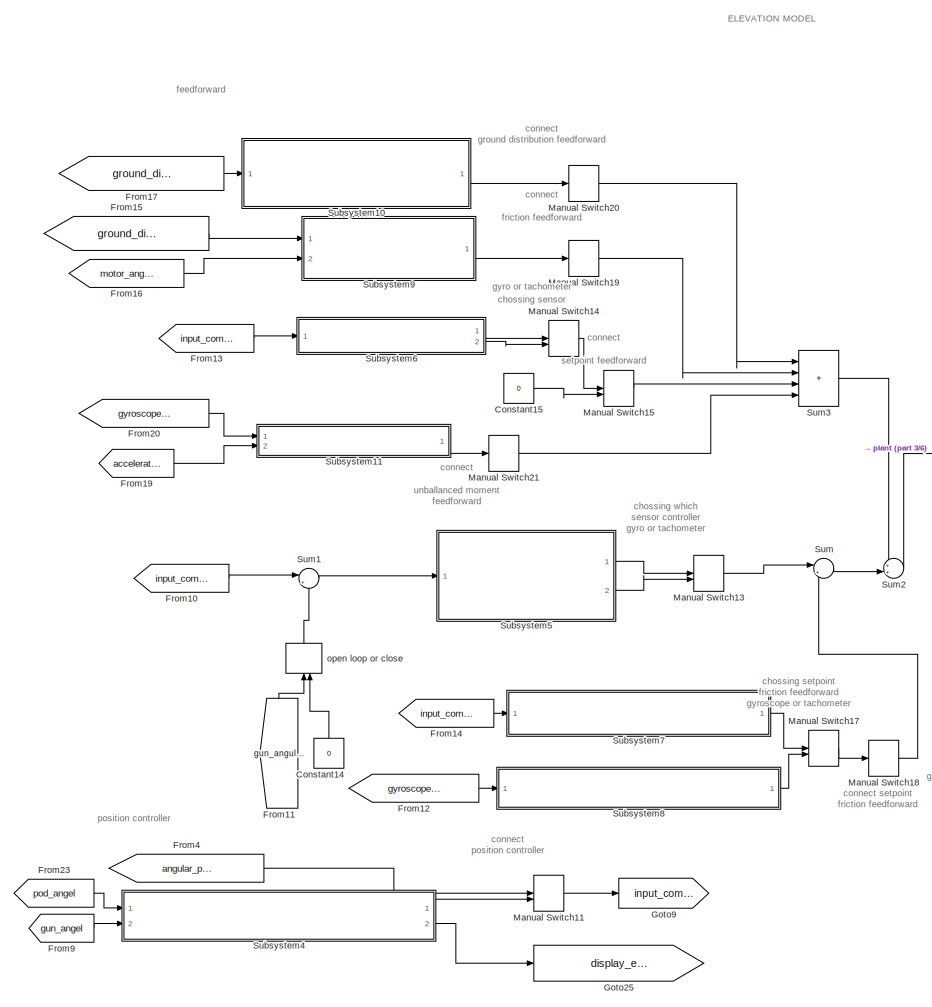
[diagram: root canvas - part 1/6, top center region]
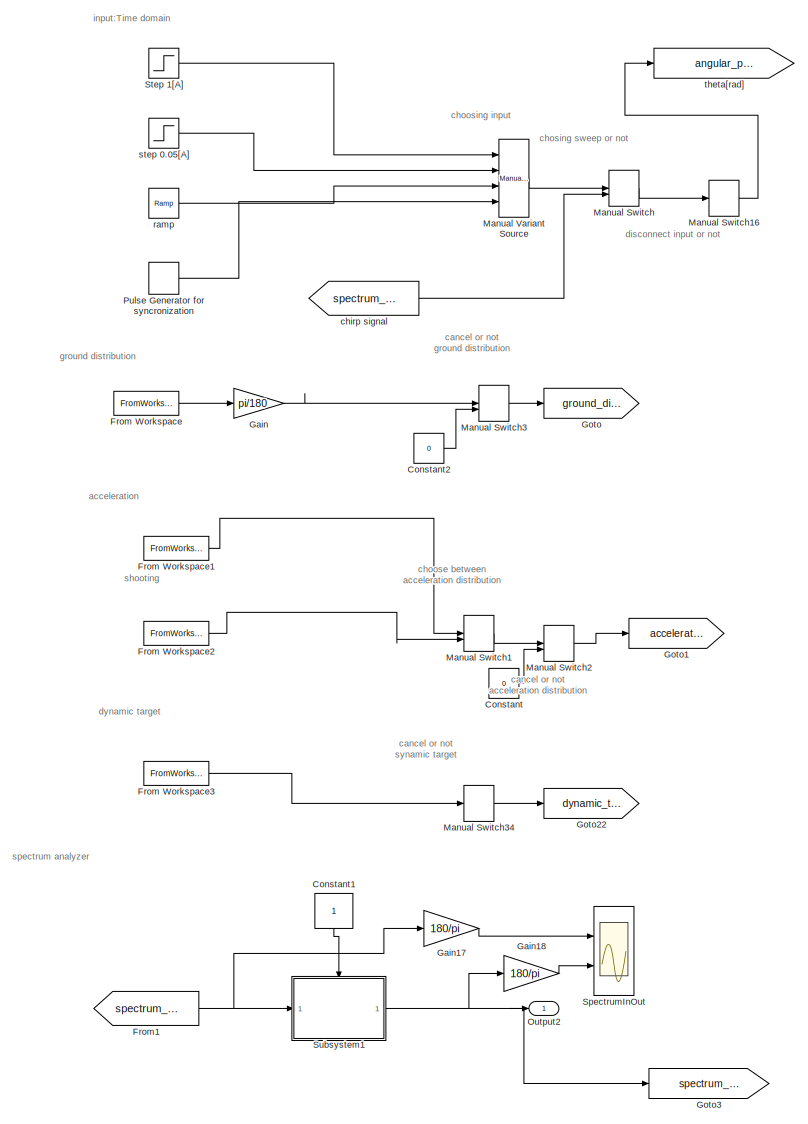
[diagram: root canvas - part 2/6, top left region]
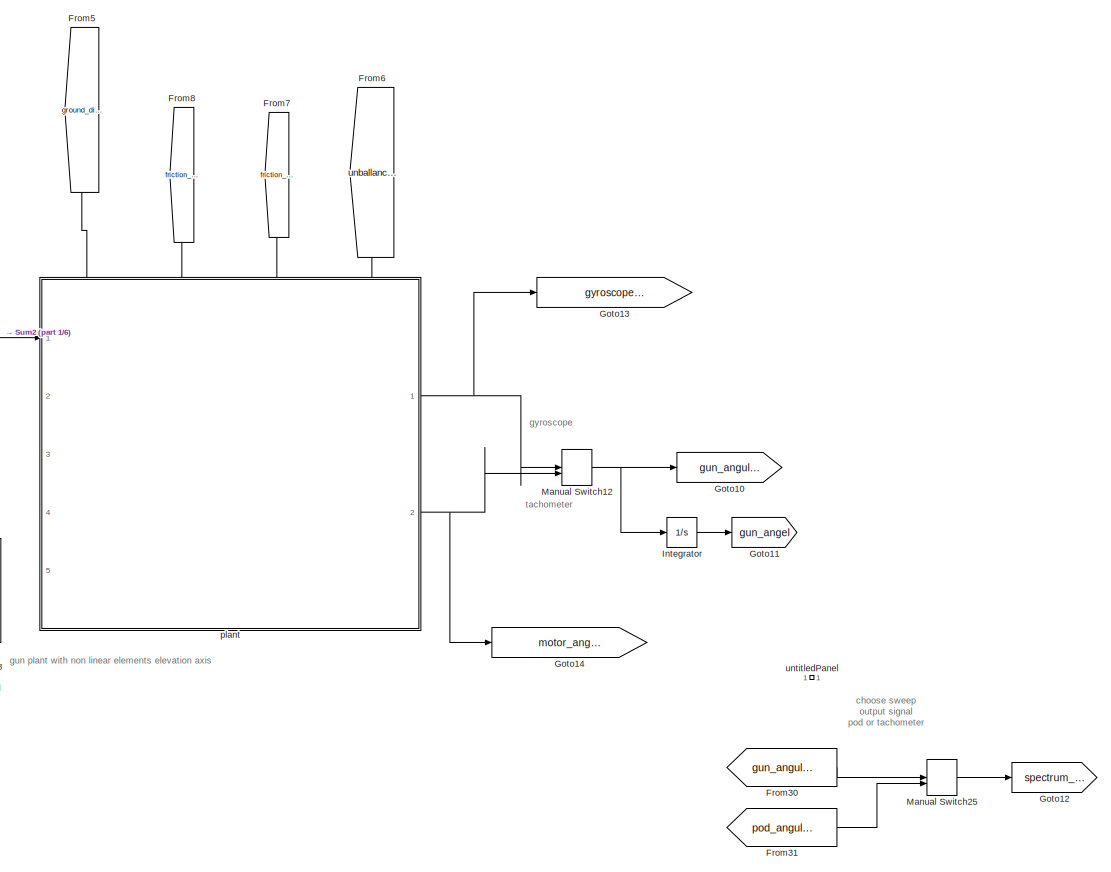
[diagram: root canvas - part 3/6, top right region]
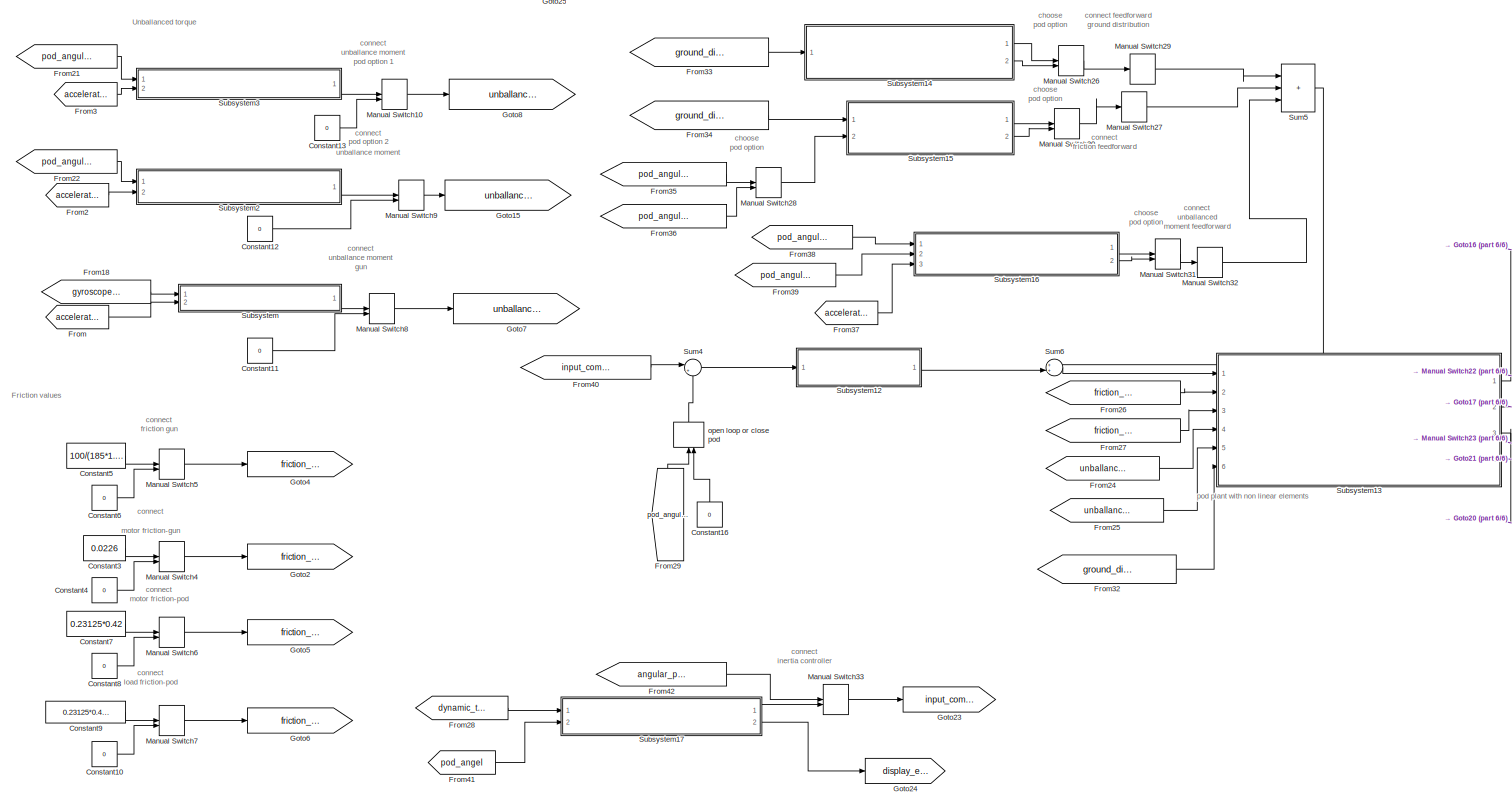
[diagram: root canvas - part 4/6, central region]
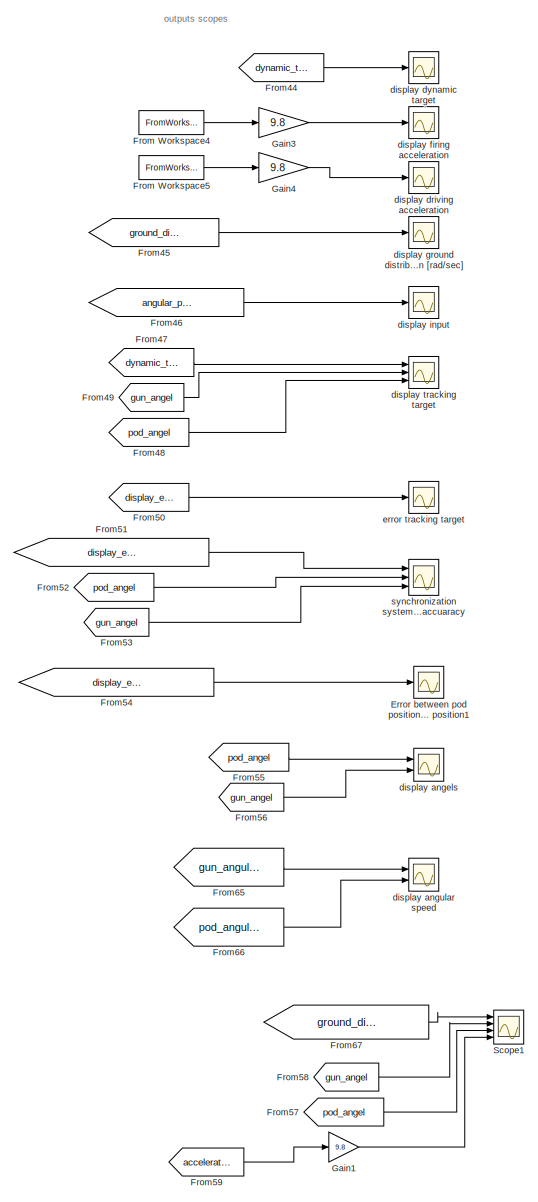
[diagram: root canvas - part 5/6, bottom left region]
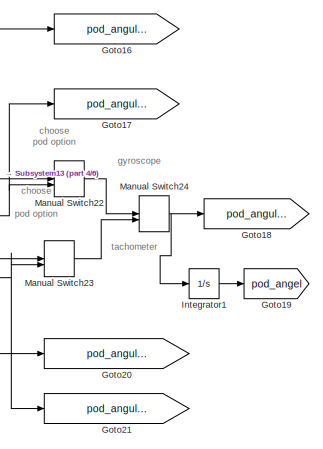
[diagram: root canvas - part 6/6, middle right region]
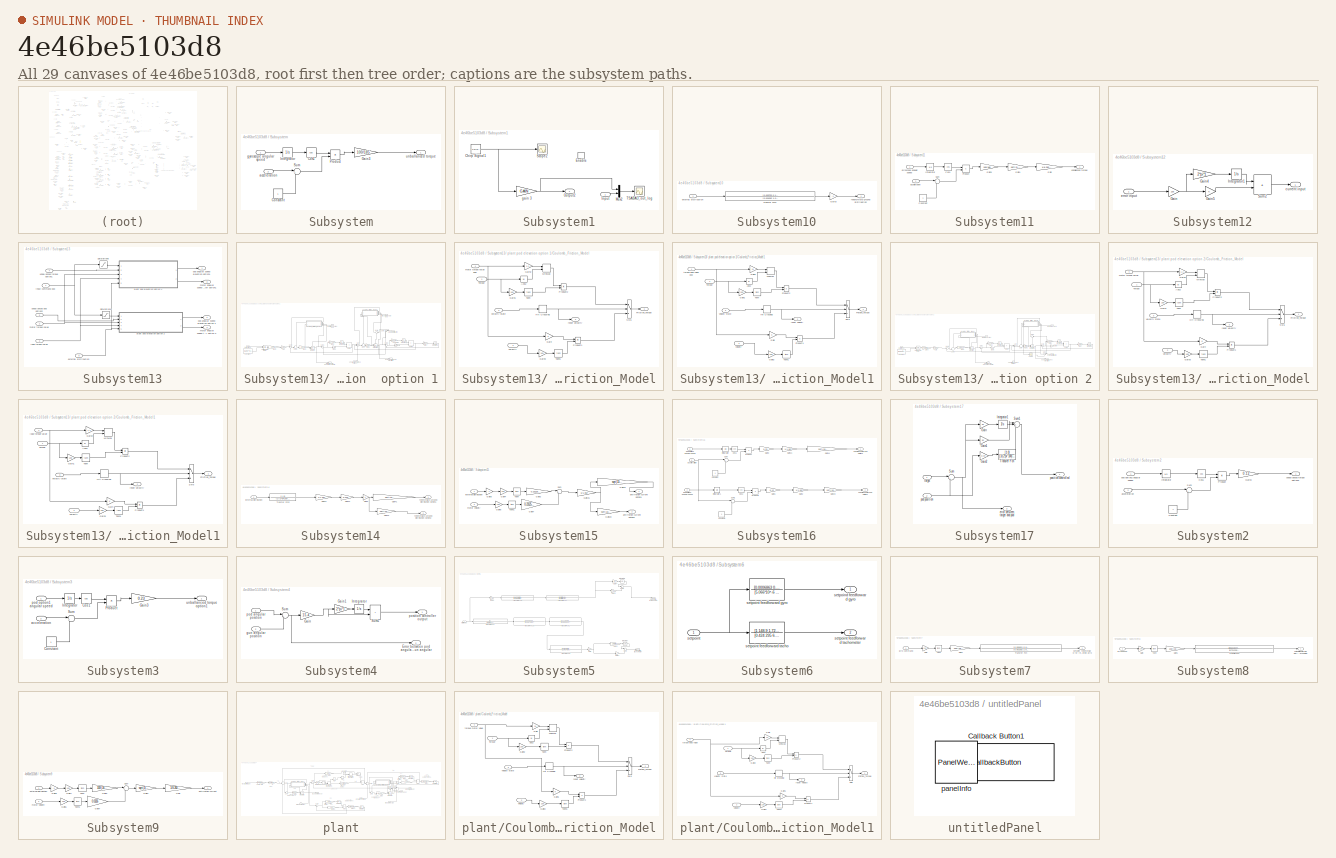
[diagram: thumbnail index - all 29 canvases of the model, root first then tree order]
MODEL slx_4e46be5103d8
KIND model
CONFIG AbsTol = auto
CONFIG EnableMultiTasking = off
CONFIG FixedStep = auto
CONFIG MaxStep = auto
CONFIG MinStep = auto
CONFIG RelTol = 1e-3
CONFIG SampleTimeConstraint = Unconstrained
CONFIG SolverName = VariableStepAuto
CONFIG StartTime = 0.0
CONFIG StopTime = 45
BLOCK [Scope]  synchronization system stability accuaracy
  Floating = off
  NumInputPorts = 3
  Ports = [3]
  ScopeSpecificationString = Simulink.scopes.TimeScopeBlockCfg('CurrentConfiguration', extmgr.ConfigurationSet(extmgr.Configuration('Core','General UI',true),extmgr.Configuration('Core','Source UI',true),extmgr.Configuration('Sources','WiredSimulink',true,'DataLoggingVariableName','ScopeData10'),extmgr.Configuration('Visuals','Time Domain',true,'SerializedDisplays',{struct('MinYLimReal','-0.0003','MaxYLimReal','0.00025','YLab...<+3036ch>
BLOCK [Constant] Constant
  SampleTime = -1
  Value = 0
BLOCK [Constant] Constant1
  AttributesFormatString = 1 - START\n0 -STOP\ninternal spectrum
  NameLocation = left
  OpenFcn = if get_param(gcbh,'value')-48 set_param(gcbh,'value','0','backgroundcolor','red');\nelse set_param(gcbh,'value','1','backgroundcolor','green');                       \nend
  OutDataTypeStr = boolean
BLOCK [Constant] Constant10
  SampleTime = 0
  Value = 0
BLOCK [Constant] Constant11
  SampleTime = 0
  Value = 0
BLOCK [Constant] Constant12
  SampleTime = 0
  Value = 0
BLOCK [Constant] Constant13
  SampleTime = 0
  Value = 0
BLOCK [Constant] Constant14
  NameLocation = right
  SampleTime = 0
  Value = 0
BLOCK [Constant] Constant15
  SampleTime = 0
  Value = 0
BLOCK [Constant] Constant16
  NameLocation = right
  SampleTime = 0
  Value = 0
BLOCK [Constant] Constant2
  SampleTime = -1
  Value = 0
BLOCK [Constant] Constant3
  SampleTime = 0
  Value = 0.0226
BLOCK [Constant] Constant4
  SampleTime = 0
  Value = 0
BLOCK [Constant] Constant5
  SampleTime = 0
  Value = 100/(185*1.1)
BLOCK [Constant] Constant6
  SampleTime = 0
  Value = 0
BLOCK [Constant] Constant7
  SampleTime = 0
  Value = 0.23125*0.42
BLOCK [Constant] Constant8
  SampleTime = 0
  Value = 0
BLOCK [Constant] Constant9
  SampleTime = 0
  Value = 0.23125*0.42*0.7
BLOCK [Scope] Error between pod position to gun position1
  Floating = off
  NumInputPorts = 1
  Ports = [1]
  ScopeSpecificationString = Simulink.scopes.TimeScopeBlockCfg('CurrentConfiguration', extmgr.ConfigurationSet(extmgr.Configuration('Core','General UI',true),extmgr.Configuration('Core','Source UI',true),extmgr.Configuration('Sources','WiredSimulink',true,'DataLoggingVariableName','ScopeData1'),extmgr.Configuration('Visuals','Time Domain',true,'SerializedDisplays',{struct('MinYLimReal','-0.00026','MaxYLimReal','0.00027','YLab...<+1511ch>
BLOCK [From] From
  GotoTag = acceleration
BLOCK [FromWorkspace] From Workspace
  Interpolate = off
  OutputAfterFinalValue = Setting to zero
  SampleTime = ts3/3
  VariableName = eldist
  ZeroCross = off
BLOCK [FromWorkspace] From Workspace1
  Interpolate = off
  OutputAfterFinalValue = Setting to zero
  SampleTime = ts3/3
  VariableName = gz
  ZeroCross = off
BLOCK [FromWorkspace] From Workspace2
  Interpolate = off
  OutputAfterFinalValue = Setting to zero
  SampleTime = ts3/9
  VariableName = firegz
  ZeroCross = off
BLOCK [FromWorkspace] From Workspace3
  Interpolate = off
  OutputAfterFinalValue = Setting to zero
  SampleTime = 5*ts3
  VariableName = targety
  ZeroCross = off
BLOCK [FromWorkspace] From Workspace4
  Interpolate = off
  OutputAfterFinalValue = Setting to zero
  SampleTime = ts3/9
  VariableName = firegz
  ZeroCross = off
BLOCK [FromWorkspace] From Workspace5
  Interpolate = off
  OutputAfterFinalValue = Setting to zero
  SampleTime = ts3/3
  VariableName = gz
  ZeroCross = off
BLOCK [From] From1
  GotoTag = spectrum_back
BLOCK [From] From10
  GotoTag = input_command
BLOCK [From] From11
  GotoTag = gun_angular_speed
  NameLocation = left
BLOCK [From] From12
  GotoTag = gyroscope_angular_speed
BLOCK [From] From13
  GotoTag = input_command
BLOCK [From] From14
  GotoTag = input_command
BLOCK [From] From15
  GotoTag = ground_distribution
  NameLocation = top
BLOCK [From] From16
  GotoTag = motor_angular_speed
BLOCK [From] From17
  GotoTag = ground_distribution
  NameLocation = top
BLOCK [From] From18
  GotoTag = gyroscope_angular_speed
BLOCK [From] From19
  GotoTag = acceleration
BLOCK [From] From2
  GotoTag = acceleration
BLOCK [From] From20
  GotoTag = gyroscope_angular_speed
BLOCK [From] From21
  GotoTag = pod_angular_speed_1
BLOCK [From] From22
  GotoTag = pod_angular_speed_2
BLOCK [From] From23
  GotoTag = pod_angel
BLOCK [From] From24
  GotoTag = unballanced_torque_pod1
BLOCK [From] From25
  GotoTag = unballanced_torque_pod2
BLOCK [From] From26
  GotoTag = friction_gear_motor_pod
BLOCK [From] From27
  GotoTag = friction_gear_load_pod
BLOCK [From] From28
  GotoTag = dynamic_target
BLOCK [From] From29
  GotoTag = pod_angular_speed
  NameLocation = left
BLOCK [From] From3
  GotoTag = acceleration
BLOCK [From] From30
  GotoTag = gun_angular_speed
  NameLocation = top
BLOCK [From] From31
  GotoTag = pod_angular_speed
  NameLocation = top
BLOCK [From] From32
  GotoTag = ground_distribution
  NameLocation = top
BLOCK [From] From33
  GotoTag = ground_distribution
  NameLocation = top
BLOCK [From] From34
  GotoTag = ground_distribution
  NameLocation = top
BLOCK [From] From35
  GotoTag = pod_angular_speed_motor1
BLOCK [From] From36
  GotoTag = pod_angular_speed_motor2
BLOCK [From] From37
  GotoTag = acceleration
BLOCK [From] From38
  GotoTag = pod_angular_speed_1
BLOCK [From] From39
  GotoTag = pod_angular_speed_2
BLOCK [From] From4
  GotoTag = angular_position_or_speed
BLOCK [From] From40
  GotoTag = input_command_pod
BLOCK [From] From41
  GotoTag = pod_angel
BLOCK [From] From42
  GotoTag = angular_position_or_speed
BLOCK [From] From44
  GotoTag = dynamic_target
BLOCK [From] From45
  GotoTag = ground_distribution
BLOCK [From] From46
  GotoTag = angular_position_or_speed
BLOCK [From] From47
  GotoTag = dynamic_target
BLOCK [From] From48
  GotoTag = pod_angel
BLOCK [From] From49
  GotoTag = gun_angel
BLOCK [From] From5
  GotoTag = ground_distribution
  NameLocation = left
BLOCK [From] From50
  GotoTag = display_error
BLOCK [From] From51
  GotoTag = display_error_synchronization
BLOCK [From] From52
  GotoTag = pod_angel
BLOCK [From] From53
  GotoTag = gun_angel
BLOCK [From] From54
  GotoTag = display_error_synchronization
BLOCK [From] From55
  GotoTag = pod_angel
  NameLocation = left
BLOCK [From] From56
  GotoTag = gun_angel
BLOCK [From] From57
  GotoTag = pod_angel
BLOCK [From] From58
  GotoTag = gun_angel
BLOCK [From] From59
  GotoTag = acceleration
BLOCK [From] From6
  GotoTag = unballanced_torque_gun
  NameLocation = left
BLOCK [From] From65
  GotoTag = gun_angular_speed
  NameLocation = top
BLOCK [From] From66
  GotoTag = pod_angular_speed
  NameLocation = top
BLOCK [From] From67
  GotoTag = ground_distribution
  NameLocation = top
BLOCK [From] From7
  GotoTag = friction_gear_motor_gun
  NameLocation = left
BLOCK [From] From8
  GotoTag = friction_gear_load_gun
  NameLocation = left
BLOCK [From] From9
  GotoTag = gun_angel
BLOCK [Gain] Gain
  Gain = pi/180
BLOCK [Gain] Gain1
  Gain = 9.8
BLOCK [Gain] Gain17
  Gain = 180/pi
BLOCK [Gain] Gain18
  Gain = 180/pi
BLOCK [Gain] Gain3
  Gain = 9.8
BLOCK [Gain] Gain4
  Gain = 9.8
BLOCK [Goto] Goto
  GotoTag = ground_distribution
BLOCK [Goto] Goto1
  GotoTag = acceleration
BLOCK [Goto] Goto10
  GotoTag = gun_angular_speed
BLOCK [Goto] Goto11
  GotoTag = gun_angel
BLOCK [Goto] Goto12
  GotoTag = spectrum_back
BLOCK [Goto] Goto13
  GotoTag = gyroscope_angular_speed
BLOCK [Goto] Goto14
  GotoTag = motor_angular_speed
BLOCK [Goto] Goto15
  GotoTag = unballanced_torque_pod2
BLOCK [Goto] Goto16
  GotoTag = pod_angular_speed_1
BLOCK [Goto] Goto17
  GotoTag = pod_angular_speed_2
BLOCK [Goto] Goto18
  GotoTag = pod_angular_speed
BLOCK [Goto] Goto19
  GotoTag = pod_angel
BLOCK [Goto] Goto2
  GotoTag = friction_gear_motor_gun
BLOCK [Goto] Goto20
  GotoTag = pod_angular_speed_motor1
BLOCK [Goto] Goto21
  GotoTag = pod_angular_speed_motor2
BLOCK [Goto] Goto22
  GotoTag = dynamic_target
BLOCK [Goto] Goto23
  GotoTag = input_command_pod
BLOCK [Goto] Goto24
  GotoTag = display_error
BLOCK [Goto] Goto25
  GotoTag = display_error_synchronization
BLOCK [Goto] Goto3
  GotoTag = spectrum_signal
BLOCK [Goto] Goto4
  GotoTag = friction_gear_load_gun
BLOCK [Goto] Goto5
  GotoTag = friction_gear_motor_pod
BLOCK [Goto] Goto6
  GotoTag = friction_gear_load_pod
BLOCK [Goto] Goto7
  GotoTag = unballanced_torque_gun
BLOCK [Goto] Goto8
  GotoTag = unballanced_torque_pod1
BLOCK [Goto] Goto9
  GotoTag = input_command
BLOCK [Integrator] Integrator
  Ports = [1, 1]
  ZeroCross = off
BLOCK [Integrator] Integrator1
  Ports = [1, 1]
  ZeroCross = off
BLOCK [ManualSwitch] Manual Switch
BLOCK [ManualSwitch] Manual Switch1
  CurrentSetting = 0
BLOCK [ManualSwitch] Manual Switch10
BLOCK [ManualSwitch] Manual Switch11
  CurrentSetting = 0
BLOCK [ManualSwitch] Manual Switch12
BLOCK [ManualSwitch] Manual Switch13
BLOCK [ManualSwitch] Manual Switch14
  CurrentSetting = 0
BLOCK [ManualSwitch] Manual Switch15
  CurrentSetting = 0
BLOCK [ManualSwitch] Manual Switch16
  CurrentSetting = 0
BLOCK [ManualSwitch] Manual Switch17
BLOCK [ManualSwitch] Manual Switch18
  CurrentSetting = 0
BLOCK [ManualSwitch] Manual Switch19
BLOCK [ManualSwitch] Manual Switch2
  CurrentSetting = 0
BLOCK [ManualSwitch] Manual Switch20
BLOCK [ManualSwitch] Manual Switch21
BLOCK [ManualSwitch] Manual Switch22
BLOCK [ManualSwitch] Manual Switch23
  CurrentSetting = 0
BLOCK [ManualSwitch] Manual Switch24
BLOCK [ManualSwitch] Manual Switch25
  CurrentSetting = 0
BLOCK [ManualSwitch] Manual Switch26
BLOCK [ManualSwitch] Manual Switch27
BLOCK [ManualSwitch] Manual Switch28
BLOCK [ManualSwitch] Manual Switch29
BLOCK [ManualSwitch] Manual Switch3
  CurrentSetting = 0
BLOCK [ManualSwitch] Manual Switch30
BLOCK [ManualSwitch] Manual Switch31
BLOCK [ManualSwitch] Manual Switch32
BLOCK [ManualSwitch] Manual Switch33
  CurrentSetting = 0
BLOCK [ManualSwitch] Manual Switch34
BLOCK [ManualSwitch] Manual Switch4
BLOCK [ManualSwitch] Manual Switch5
BLOCK [ManualSwitch] Manual Switch6
BLOCK [ManualSwitch] Manual Switch7
BLOCK [ManualSwitch] Manual Switch8
BLOCK [ManualSwitch] Manual Switch9
  CurrentSetting = 0
BLOCK [Reference] Manual Variant Source  REF=simulink/Signal
Routing/Manual
Variant Source
  Ports = [4, 1]
  SourceBlock = simulink/Signal\nRouting/Manual\nVariant Source
  SourceProductBaseCode = SL
  SourceType = ManualVariantSource
BLOCK [Outport] Output2
BLOCK [DiscretePulseGenerator] Pulse Generator for syncronization
  Period = 5
  Ports = [0, 1]
  PulseType = Time based
  PulseWidth = 20
BLOCK [Scope] Scope1
  Floating = off
  NumInputPorts = 4
  Ports = [4]
  ScopeSpecificationString = Simulink.scopes.TimeScopeBlockCfg('CurrentConfiguration', extmgr.ConfigurationSet(extmgr.Configuration('Core','General UI',true),extmgr.Configuration('Core','Source UI',true),extmgr.Configuration('Sources','WiredSimulink',true,'DataLoggingVariableName','ScopeData15'),extmgr.Configuration('Visuals','Time Domain',true,'SerializedDisplays',{struct('MinYLimReal','-1.00000','MaxYLimReal','1.00000','YLa...<+4128ch>
BLOCK [Scope] SpectrumInOut
  Floating = off
  NumInputPorts = 2
  Ports = [2]
  ScopeSpecificationString = Simulink.scopes.TimeScopeBlockCfg('CurrentConfiguration', extmgr.ConfigurationSet(extmgr.Configuration('Core','General UI',true),extmgr.Configuration('Core','Source UI',true),extmgr.Configuration('Sources','WiredSimulink',true,'DataLoggingVariableName','ScopeData1','SampleTime','0.001','DataLoggingSaveFormat','StructureWithTime'),extmgr.Configuration('Visuals','Time Domain',true,'SerializedDisplay...<+2445ch>
BLOCK [Step] Step 1[A]
  SampleTime = 0
  ZeroCross = off
BLOCK [SubSystem] Subsystem
  Ports = [2, 1]
  RequestExecContextInheritance = off
BLOCK [Constant] Subsystem/Constant
  SampleTime = -1
BLOCK [Trigonometry] Subsystem/Cos1
  Operator = cos
  Ports = [1, 1]
BLOCK [Gain] Subsystem/Gain3
  Gain = 100/185
BLOCK [Integrator] Subsystem/Integrator
  Ports = [1, 1]
  ZeroCross = off
BLOCK [Product] Subsystem/Product
  Ports = [2, 1]
BLOCK [Sum] Subsystem/Sum
  Inputs = |++
  Ports = [2, 1]
BLOCK [Inport] Subsystem/acceleration
  Port = 2
BLOCK [Inport] Subsystem/gyroscope angular speed
BLOCK [Outport] Subsystem/unballanced torque
BLOCK [SubSystem] Subsystem1
  Ports = [1, 1, 1]
  RequestExecContextInheritance = off
BLOCK [Reference] Subsystem1/Chirp Signal1  REF=simulink/Sources/Chirp Signal
  Ports = [0, 1]
  SourceBlock = simulink/Sources/Chirp Signal
  SourceProductBaseCode = SL
  SourceType = chirp
BLOCK [EnablePort] Subsystem1/Enable
  Ports = []
  StatesWhenEnabling = reset
BLOCK [Inport] Subsystem1/Input
BLOCK [Mux] Subsystem1/Mux2
  DisplayOption = bar
  Inputs = 2
  Ports = [2, 1]
BLOCK [Outport] Subsystem1/Output2
BLOCK [Scope] Subsystem1/Scope2
  Floating = off
  NumInputPorts = 1
  Ports = [1]
  ScopeSpecificationString = Simulink.scopes.TimeScopeBlockCfg('CurrentConfiguration', extmgr.ConfigurationSet(extmgr.Configuration('Core','General UI',true),extmgr.Configuration('Core','Source UI',true),extmgr.Configuration('Sources','WiredSimulink',true,'DataLoggingVariableName','ScopeData3'),extmgr.Configuration('Visuals','Time Domain',true,'SerializedDisplays',{struct('MinYLimReal','-1.25','MaxYLimReal','1.25','YLabelReal...<+1427ch>
BLOCK [Scope] Subsystem1/TSABAD_out_log
  Floating = off
  NumInputPorts = 1
  Ports = [1]
  ScopeSpecificationString = Simulink.scopes.TimeScopeBlockCfg('CurrentConfiguration', extmgr.ConfigurationSet(extmgr.Configuration('Core','General UI',true),extmgr.Configuration('Core','Source UI',true),extmgr.Configuration('Sources','WiredSimulink',true,'DataLogging',true,'DataLoggingVariableName','TSABAD_out_log','DataLoggingSaveFormat','Array','DataLoggingDecimation','1','DataLoggingDecimateData',true,'SampleTime','0.001'...<+1754ch>
BLOCK [Gain] Subsystem1/gain 3
  Gain = GAIN
  OutDataTypeStr = Inherit: Same as input
  ParamDataTypeStr = Inherit: Same as input
  SampleTime = ts3
  SaturateOnIntegerOverflow = on
BLOCK [SubSystem] Subsystem10
  Ports = [1, 1]
  RequestExecContextInheritance = off
BLOCK [Gain] Subsystem10/Gain3
  Gain = -1
BLOCK [TransferFcn] Subsystem10/Transfer Fcn1
  Denominator = [0.001592 1.064 178.8 8.72*10^4]
  Numerator = [0.003753 0.1609 350.7  0]
BLOCK [Inport] Subsystem10/external distribution
BLOCK [Outport] Subsystem10/feedforward ground distribution
BLOCK [SubSystem] Subsystem11
  Ports = [2, 1]
  RequestExecContextInheritance = off
BLOCK [Constant] Subsystem11/Constant
  SampleTime = -1
BLOCK [Trigonometry] Subsystem11/Cos1
  Operator = cos
  Ports = [1, 1]
BLOCK [Gain] Subsystem11/Gain
  Gain = 1/8.282809728
BLOCK [Gain] Subsystem11/Gain1
  Gain = sqrt(3)/0.39
BLOCK [Gain] Subsystem11/Gain3
  Gain = 100/185
BLOCK [Integrator] Subsystem11/Integrator
  Ports = [1, 1]
  ZeroCross = off
BLOCK [Product] Subsystem11/Product
  Ports = [2, 1]
BLOCK [Sum] Subsystem11/Sum
  Inputs = |++
  Ports = [2, 1]
BLOCK [Inport] Subsystem11/acceleration
  Port = 2
BLOCK [Inport] Subsystem11/gyroscope angular speed
BLOCK [Outport] Subsystem11/unballanced torque
BLOCK [SubSystem] Subsystem12
  Ports = [1, 1]
  RequestExecContextInheritance = off
BLOCK [Gain] Subsystem12/Gain
  Gain = 136
BLOCK [Gain] Subsystem12/Gain4
  Gain = 2*pi*1
BLOCK [Gain] Subsystem12/Gain5
BLOCK [Integrator] Subsystem12/Integrator1
  Ports = [1, 1]
BLOCK [Sum] Subsystem12/Sum2
  IconShape = rectangular
  Inputs = |++
  Ports = [2, 1]
BLOCK [Outport] Subsystem12/current input
BLOCK [Inport] Subsystem12/error input
BLOCK [SubSystem] Subsystem13
  Ports = [6, 4]
  RequestExecContextInheritance = off
BLOCK [SubSystem] Subsystem13/ plant pod elevation  option 1
  Ports = [5, 2]
  RequestExecContextInheritance = off
BLOCK [Constant] Subsystem13/ plant pod elevation  option 1/Constant
  SampleTime = -1
  Value = (6.2*10^-3/1.9)*1.5
BLOCK [SubSystem] Subsystem13/ plant pod elevation  option 1/Coulomb_Friction_Model
  NameLocation = top
  Ports = [4, 2]
  RequestExecContextInheritance = off
BLOCK [Abs] Subsystem13/ plant pod elevation  option 1/Coulomb_Friction_Model/Abs2
  SaturateOnIntegerOverflow = off
  ZeroCross = off
BLOCK [Outport] Subsystem13/ plant pod elevation  option 1/Coulomb_Friction_Model/Friction_Torque
BLOCK [Gain] Subsystem13/ plant pod elevation  option 1/Coulomb_Friction_Model/Gain
BLOCK [Gain] Subsystem13/ plant pod elevation  option 1/Coulomb_Friction_Model/Gain1
  Gain = 100
BLOCK [Gain] Subsystem13/ plant pod elevation  option 1/Coulomb_Friction_Model/Gain2
  Gain = 1.1
BLOCK [Gain] Subsystem13/ plant pod elevation  option 1/Coulomb_Friction_Model/Gain3
  Gain = 100
BLOCK [HitCross] Subsystem13/ plant pod elevation  option 1/Coulomb_Friction_Model/Hit Crossing
  Ports = [1, 1]
  ZeroCross = off
BLOCK [MinMax] Subsystem13/ plant pod elevation  option 1/Coulomb_Friction_Model/MinMax
  Inputs = 2
  Ports = [2, 1]
BLOCK [Product] Subsystem13/ plant pod elevation  option 1/Coulomb_Friction_Model/Product1
  Ports = [2, 1]
  RndMeth = Zero
BLOCK [Product] Subsystem13/ plant pod elevation  option 1/Coulomb_Friction_Model/Product2
  Ports = [2, 1]
  RndMeth = Zero
BLOCK [Switch] Subsystem13/ plant pod elevation  option 1/Coulomb_Friction_Model/Sw6
  Threshold = 0.5
  ZeroCross = off
BLOCK [Trigonometry] Subsystem13/ plant pod elevation  option 1/Coulomb_Friction_Model/Tanh
  Operator = tanh
  Ports = [1, 1]
BLOCK [Trigonometry] Subsystem13/ plant pod elevation  option 1/Coulomb_Friction_Model/Tanh1
  Operator = tanh
  Ports = [1, 1]
BLOCK [Inport] Subsystem13/ plant pod elevation  option 1/Coulomb_Friction_Model/Torque
BLOCK [Inport] Subsystem13/ plant pod elevation  option 1/Coulomb_Friction_Model/motor torque value pod
  Port = 4
BLOCK [Outport] Subsystem13/ plant pod elevation  option 1/Coulomb_Friction_Model/reset velocity
  Port = 2
BLOCK [Inport] Subsystem13/ plant pod elevation  option 1/Coulomb_Friction_Model/velocity
  Port = 2
BLOCK [Inport] Subsystem13/ plant pod elevation  option 1/Coulomb_Friction_Model/velocity state
  Port = 3
BLOCK [SubSystem] Subsystem13/ plant pod elevation  option 1/Coulomb_Friction_Model1
  NameLocation = top
  Ports = [4, 2]
  RequestExecContextInheritance = off
BLOCK [Abs] Subsystem13/ plant pod elevation  option 1/Coulomb_Friction_Model1/Abs2
  SaturateOnIntegerOverflow = off
  ZeroCross = off
BLOCK [Outport] Subsystem13/ plant pod elevation  option 1/Coulomb_Friction_Model1/Friction_Torque
BLOCK [Gain] Subsystem13/ plant pod elevation  option 1/Coulomb_Friction_Model1/Gain
BLOCK [Gain] Subsystem13/ plant pod elevation  option 1/Coulomb_Friction_Model1/Gain1
  Gain = 100
BLOCK [Gain] Subsystem13/ plant pod elevation  option 1/Coulomb_Friction_Model1/Gain2
  Gain = 1.1
BLOCK [Gain] Subsystem13/ plant pod elevation  option 1/Coulomb_Friction_Model1/Gain3
  Gain = 100
BLOCK [HitCross] Subsystem13/ plant pod elevation  option 1/Coulomb_Friction_Model1/Hit Crossing
  Ports = [1, 1]
  ZeroCross = off
BLOCK [MinMax] Subsystem13/ plant pod elevation  option 1/Coulomb_Friction_Model1/MinMax
  Inputs = 2
  Ports = [2, 1]
BLOCK [Product] Subsystem13/ plant pod elevation  option 1/Coulomb_Friction_Model1/Product1
  Ports = [2, 1]
  RndMeth = Zero
BLOCK [Product] Subsystem13/ plant pod elevation  option 1/Coulomb_Friction_Model1/Product2
  Ports = [2, 1]
  RndMeth = Zero
BLOCK [Switch] Subsystem13/ plant pod elevation  option 1/Coulomb_Friction_Model1/Sw6
  Threshold = 0.5
  ZeroCross = off
BLOCK [Trigonometry] Subsystem13/ plant pod elevation  option 1/Coulomb_Friction_Model1/Tanh
  Operator = tanh
  Ports = [1, 1]
BLOCK [Trigonometry] Subsystem13/ plant pod elevation  option 1/Coulomb_Friction_Model1/Tanh1
  Operator = tanh
  Ports = [1, 1]
BLOCK [Inport] Subsystem13/ plant pod elevation  option 1/Coulomb_Friction_Model1/Torque
BLOCK [Outport] Subsystem13/ plant pod elevation  option 1/Coulomb_Friction_Model1/reset velocity
  Port = 2
BLOCK [Inport] Subsystem13/ plant pod elevation  option 1/Coulomb_Friction_Model1/torque load value pod
  Port = 4
BLOCK [Inport] Subsystem13/ plant pod elevation  option 1/Coulomb_Friction_Model1/velocity
  Port = 2
BLOCK [Inport] Subsystem13/ plant pod elevation  option 1/Coulomb_Friction_Model1/velocity state
  Port = 3
BLOCK [Gain] Subsystem13/ plant pod elevation  option 1/Gain
  Gain = 1.057
BLOCK [Gain] Subsystem13/ plant pod elevation  option 1/Gain1
  Gain = 1/0.015
BLOCK [Gain] Subsystem13/ plant pod elevation  option 1/Gain2
  Gain = 1/0.52
BLOCK [Gain] Subsystem13/ plant pod elevation  option 1/Gain3
  Gain = 43524*(0.52/0.5)
BLOCK [Gain] Subsystem13/ plant pod elevation  option 1/Gain4
  Gain = 652720*(0.52/0.5)
BLOCK [Gain] Subsystem13/ plant pod elevation  option 1/Gain5
  Gain = 300*(0.52/0.5)
BLOCK [Gain] Subsystem13/ plant pod elevation  option 1/Gain6
  Gain = 15*(0.52/0.5)
BLOCK [Gain] Subsystem13/ plant pod elevation  option 1/Gain7
  Gain = 1/(0.1*0.52/0.5)
BLOCK [Gain] Subsystem13/ plant pod elevation  option 1/Gain8
  Gain = 1.59*0.52/(sqrt(10)*0.5)
BLOCK [Integrator] Subsystem13/ plant pod elevation  option 1/Integrator
  ExternalReset = rising
  Ports = [2, 1, 0, 0, 1]
  ShowStatePort = on
  ZeroCross = off
BLOCK [Integrator] Subsystem13/ plant pod elevation  option 1/Integrator1
  Ports = [1, 1]
BLOCK [Integrator] Subsystem13/ plant pod elevation  option 1/Integrator2
  ExternalReset = rising
  Ports = [2, 1, 0, 0, 1]
  ShowStatePort = on
  ZeroCross = off
BLOCK [Integrator] Subsystem13/ plant pod elevation  option 1/Integrator3
  Ports = [1, 1]
BLOCK [Integrator] Subsystem13/ plant pod elevation  option 1/Integrator4
  Ports = [1, 1]
BLOCK [Sum] Subsystem13/ plant pod elevation  option 1/Sum
  Inputs = |+--
  Ports = [3, 1]
BLOCK [Sum] Subsystem13/ plant pod elevation  option 1/Sum1
  Inputs = |+-
  Ports = [2, 1]
BLOCK [Sum] Subsystem13/ plant pod elevation  option 1/Sum2
  IconShape = rectangular
  Inputs = |++
  Ports = [2, 1]
BLOCK [Sum] Subsystem13/ plant pod elevation  option 1/Sum3
  Inputs = |+-
  Ports = [2, 1]
BLOCK [Sum] Subsystem13/ plant pod elevation  option 1/Sum4
  Inputs = |+-
  Ports = [2, 1]
BLOCK [Sum] Subsystem13/ plant pod elevation  option 1/Sum5
  IconShape = rectangular
  Inputs = |++
  Ports = [2, 1]
BLOCK [Sum] Subsystem13/ plant pod elevation  option 1/Sum6
  Inputs = -+|
  Ports = [2, 1]
BLOCK [Sum] Subsystem13/ plant pod elevation  option 1/Sum7
  Inputs = -+|
  Ports = [2, 1]
BLOCK [Sum] Subsystem13/ plant pod elevation  option 1/Sum8
  Inputs = |-+
  Ports = [2, 1]
BLOCK [Sum] Subsystem13/ plant pod elevation  option 1/Sum9
  Inputs = |-+
  Ports = [2, 1]
BLOCK [VariableTransportDelay] Subsystem13/ plant pod elevation  option 1/Variable Time Delay
  MaximumDelay = 10
  Ports = [2, 1]
  TransDelayFeedthrough = on
BLOCK [Inport] Subsystem13/ plant pod elevation  option 1/current input
BLOCK [Inport] Subsystem13/ plant pod elevation  option 1/external distribution
  Port = 5
BLOCK [Outport] Subsystem13/ plant pod elevation  option 1/motor angular speed tachometer 
  Port = 2
BLOCK [Inport] Subsystem13/ plant pod elevation  option 1/motor torque value pod
  Port = 3
BLOCK [Outport] Subsystem13/ plant pod elevation  option 1/pod angular speed elevation
BLOCK [Inport] Subsystem13/ plant pod elevation  option 1/torque load value pod
  Port = 4
BLOCK [Inport] Subsystem13/ plant pod elevation  option 1/unballanced torque option1
  Port = 2
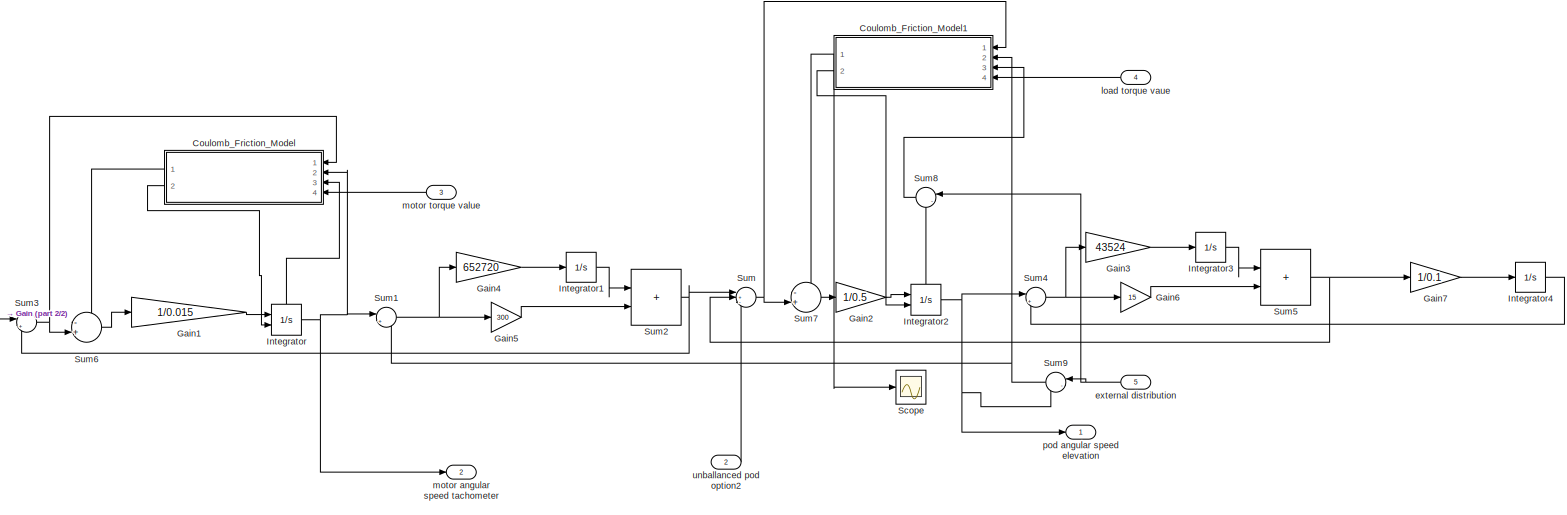
[diagram: Subsystem13/ plant pod elevation option 2 - part 1/2, most of the canvas]
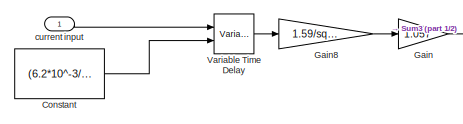
[diagram: Subsystem13/ plant pod elevation option 2 - part 2/2, bottom left region]
BLOCK [SubSystem] Subsystem13/ plant pod elevation option 2
  Ports = [5, 2]
  RequestExecContextInheritance = off
BLOCK [Constant] Subsystem13/ plant pod elevation option 2/Constant
  SampleTime = -1
  Value = (6.2*10^-3/1.9)*1.5
BLOCK [SubSystem] Subsystem13/ plant pod elevation option 2/Coulomb_Friction_Model
  NameLocation = top
  Ports = [4, 2]
  RequestExecContextInheritance = off
BLOCK [Abs] Subsystem13/ plant pod elevation option 2/Coulomb_Friction_Model/Abs2
  SaturateOnIntegerOverflow = off
  ZeroCross = off
BLOCK [Outport] Subsystem13/ plant pod elevation option 2/Coulomb_Friction_Model/Friction_Torque
BLOCK [Gain] Subsystem13/ plant pod elevation option 2/Coulomb_Friction_Model/Gain
BLOCK [Gain] Subsystem13/ plant pod elevation option 2/Coulomb_Friction_Model/Gain1
  Gain = 100
BLOCK [Gain] Subsystem13/ plant pod elevation option 2/Coulomb_Friction_Model/Gain2
  Gain = 1.1
BLOCK [Gain] Subsystem13/ plant pod elevation option 2/Coulomb_Friction_Model/Gain3
  Gain = 100
BLOCK [HitCross] Subsystem13/ plant pod elevation option 2/Coulomb_Friction_Model/Hit Crossing
  Ports = [1, 1]
  ZeroCross = off
BLOCK [MinMax] Subsystem13/ plant pod elevation option 2/Coulomb_Friction_Model/MinMax
  Inputs = 2
  Ports = [2, 1]
BLOCK [Product] Subsystem13/ plant pod elevation option 2/Coulomb_Friction_Model/Product1
  Ports = [2, 1]
  RndMeth = Zero
BLOCK [Product] Subsystem13/ plant pod elevation option 2/Coulomb_Friction_Model/Product2
  Ports = [2, 1]
  RndMeth = Zero
BLOCK [Switch] Subsystem13/ plant pod elevation option 2/Coulomb_Friction_Model/Sw6
  Threshold = 0.5
  ZeroCross = off
BLOCK [Trigonometry] Subsystem13/ plant pod elevation option 2/Coulomb_Friction_Model/Tanh
  Operator = tanh
  Ports = [1, 1]
BLOCK [Trigonometry] Subsystem13/ plant pod elevation option 2/Coulomb_Friction_Model/Tanh1
  Operator = tanh
  Ports = [1, 1]
BLOCK [Inport] Subsystem13/ plant pod elevation option 2/Coulomb_Friction_Model/Torque
BLOCK [Inport] Subsystem13/ plant pod elevation option 2/Coulomb_Friction_Model/motor torque value
  Port = 4
BLOCK [Outport] Subsystem13/ plant pod elevation option 2/Coulomb_Friction_Model/reset velocity
  Port = 2
BLOCK [Inport] Subsystem13/ plant pod elevation option 2/Coulomb_Friction_Model/velocity
  Port = 2
BLOCK [Inport] Subsystem13/ plant pod elevation option 2/Coulomb_Friction_Model/velocity state
  Port = 3
BLOCK [SubSystem] Subsystem13/ plant pod elevation option 2/Coulomb_Friction_Model1
  NameLocation = top
  Ports = [4, 2]
  RequestExecContextInheritance = off
BLOCK [Abs] Subsystem13/ plant pod elevation option 2/Coulomb_Friction_Model1/Abs2
  SaturateOnIntegerOverflow = off
  ZeroCross = off
BLOCK [Outport] Subsystem13/ plant pod elevation option 2/Coulomb_Friction_Model1/Friction_Torque
BLOCK [Gain] Subsystem13/ plant pod elevation option 2/Coulomb_Friction_Model1/Gain
BLOCK [Gain] Subsystem13/ plant pod elevation option 2/Coulomb_Friction_Model1/Gain1
  Gain = 100
BLOCK [Gain] Subsystem13/ plant pod elevation option 2/Coulomb_Friction_Model1/Gain2
  Gain = 1.1
BLOCK [Gain] Subsystem13/ plant pod elevation option 2/Coulomb_Friction_Model1/Gain3
  Gain = 100
BLOCK [HitCross] Subsystem13/ plant pod elevation option 2/Coulomb_Friction_Model1/Hit Crossing
  Ports = [1, 1]
  ZeroCross = off
BLOCK [MinMax] Subsystem13/ plant pod elevation option 2/Coulomb_Friction_Model1/MinMax
  Inputs = 2
  Ports = [2, 1]
BLOCK [Product] Subsystem13/ plant pod elevation option 2/Coulomb_Friction_Model1/Product1
  Ports = [2, 1]
  RndMeth = Zero
BLOCK [Product] Subsystem13/ plant pod elevation option 2/Coulomb_Friction_Model1/Product2
  Ports = [2, 1]
  RndMeth = Zero
BLOCK [Switch] Subsystem13/ plant pod elevation option 2/Coulomb_Friction_Model1/Sw6
  Threshold = 0.5
  ZeroCross = off
BLOCK [Trigonometry] Subsystem13/ plant pod elevation option 2/Coulomb_Friction_Model1/Tanh
  Operator = tanh
  Ports = [1, 1]
BLOCK [Trigonometry] Subsystem13/ plant pod elevation option 2/Coulomb_Friction_Model1/Tanh1
  Operator = tanh
  Ports = [1, 1]
BLOCK [Inport] Subsystem13/ plant pod elevation option 2/Coulomb_Friction_Model1/Torque
BLOCK [Inport] Subsystem13/ plant pod elevation option 2/Coulomb_Friction_Model1/load torque value
  Port = 4
BLOCK [Outport] Subsystem13/ plant pod elevation option 2/Coulomb_Friction_Model1/reset velocity
  Port = 2
BLOCK [Inport] Subsystem13/ plant pod elevation option 2/Coulomb_Friction_Model1/velocity
  Port = 2
BLOCK [Inport] Subsystem13/ plant pod elevation option 2/Coulomb_Friction_Model1/velocity state
  Port = 3
BLOCK [Gain] Subsystem13/ plant pod elevation option 2/Gain
  Gain = 1.057
BLOCK [Gain] Subsystem13/ plant pod elevation option 2/Gain1
  Gain = 1/0.015
BLOCK [Gain] Subsystem13/ plant pod elevation option 2/Gain2
  Gain = 1/0.5
BLOCK [Gain] Subsystem13/ plant pod elevation option 2/Gain3
  Gain = 43524
BLOCK [Gain] Subsystem13/ plant pod elevation option 2/Gain4
  Gain = 652720
BLOCK [Gain] Subsystem13/ plant pod elevation option 2/Gain5
  Gain = 300
BLOCK [Gain] Subsystem13/ plant pod elevation option 2/Gain6
  Gain = 15
BLOCK [Gain] Subsystem13/ plant pod elevation option 2/Gain7
  Gain = 1/0.1
BLOCK [Gain] Subsystem13/ plant pod elevation option 2/Gain8
  Gain = 1.59/sqrt(10)
BLOCK [Integrator] Subsystem13/ plant pod elevation option 2/Integrator
  ExternalReset = rising
  Ports = [2, 1, 0, 0, 1]
  ShowStatePort = on
  ZeroCross = off
BLOCK [Integrator] Subsystem13/ plant pod elevation option 2/Integrator1
  Ports = [1, 1]
BLOCK [Integrator] Subsystem13/ plant pod elevation option 2/Integrator2
  ExternalReset = rising
  Ports = [2, 1, 0, 0, 1]
  ShowStatePort = on
  ZeroCross = off
BLOCK [Integrator] Subsystem13/ plant pod elevation option 2/Integrator3
  Ports = [1, 1]
BLOCK [Integrator] Subsystem13/ plant pod elevation option 2/Integrator4
  Ports = [1, 1]
BLOCK [Scope] Subsystem13/ plant pod elevation option 2/Scope
  Floating = off
  NumInputPorts = 1
  Ports = [1]
  ScopeSpecificationString = Simulink.scopes.TimeScopeBlockCfg('CurrentConfiguration', extmgr.ConfigurationSet(extmgr.Configuration('Core','General UI',true),extmgr.Configuration('Core','Source UI',true),extmgr.Configuration('Sources','WiredSimulink',true,'DataLoggingVariableName','ScopeData2'),extmgr.Configuration('Visuals','Time Domain',true,'SerializedDisplays',{struct('MinYLimReal','-0.18842','MaxYLimReal','0.49577','YLab...<+1455ch>
BLOCK [Sum] Subsystem13/ plant pod elevation option 2/Sum
  Inputs = |+--
  Ports = [3, 1]
BLOCK [Sum] Subsystem13/ plant pod elevation option 2/Sum1
  Inputs = |+-
  Ports = [2, 1]
BLOCK [Sum] Subsystem13/ plant pod elevation option 2/Sum2
  IconShape = rectangular
  Inputs = |++
  Ports = [2, 1]
BLOCK [Sum] Subsystem13/ plant pod elevation option 2/Sum3
  Inputs = |+-
  Ports = [2, 1]
BLOCK [Sum] Subsystem13/ plant pod elevation option 2/Sum4
  Inputs = |+-
  Ports = [2, 1]
BLOCK [Sum] Subsystem13/ plant pod elevation option 2/Sum5
  IconShape = rectangular
  Inputs = |++
  Ports = [2, 1]
BLOCK [Sum] Subsystem13/ plant pod elevation option 2/Sum6
  Inputs = -+|
  Ports = [2, 1]
BLOCK [Sum] Subsystem13/ plant pod elevation option 2/Sum7
  Inputs = -+|
  Ports = [2, 1]
BLOCK [Sum] Subsystem13/ plant pod elevation option 2/Sum8
  Inputs = |-+
  Ports = [2, 1]
BLOCK [Sum] Subsystem13/ plant pod elevation option 2/Sum9
  Inputs = |-+
  Ports = [2, 1]
BLOCK [VariableTransportDelay] Subsystem13/ plant pod elevation option 2/Variable Time Delay
  MaximumDelay = 10
  Ports = [2, 1]
  TransDelayFeedthrough = on
BLOCK [Inport] Subsystem13/ plant pod elevation option 2/current input
BLOCK [Inport] Subsystem13/ plant pod elevation option 2/external distribution
  Port = 5
BLOCK [Inport] Subsystem13/ plant pod elevation option 2/load torque vaue
  Port = 4
BLOCK [Outport] Subsystem13/ plant pod elevation option 2/motor angular speed tachometer 
  Port = 2
BLOCK [Inport] Subsystem13/ plant pod elevation option 2/motor torque value
  Port = 3
BLOCK [Outport] Subsystem13/ plant pod elevation option 2/pod angular speed elevation
BLOCK [Inport] Subsystem13/ plant pod elevation option 2/unballanced pod option2
  Port = 2
BLOCK [Saturate] Subsystem13/Saturation4
  LowerLimit = -11.933*sqrt(10)/1.59
  UpperLimit = 11.933*sqrt(10)/1.59
  ZeroCross = off
BLOCK [Saturate] Subsystem13/Saturation6
  LowerLimit = -11.933*sqrt(10)*0.5/(1.59*0.52)
  UpperLimit = 11.933*sqrt(10)*0.5/(1.59*0.52)
  ZeroCross = off
BLOCK [Inport] Subsystem13/external distribution
  Port = 6
BLOCK [Inport] Subsystem13/input command pod
BLOCK [Inport] Subsystem13/load torque value
  Port = 3
BLOCK [Outport] Subsystem13/motor angular speed tachometer option 2 
  Port = 4
BLOCK [Outport] Subsystem13/motor angular speed tachometer option1
  Port = 3
BLOCK [Inport] Subsystem13/motor torque value
  Port = 2
BLOCK [Outport] Subsystem13/pod angular speed elevation option 2
  Port = 2
BLOCK [Outport] Subsystem13/pod angular speed elevation option1
BLOCK [Inport] Subsystem13/unballanced pod option2
  Port = 5
BLOCK [Inport] Subsystem13/unballanced torque option1
  Port = 4
BLOCK [SubSystem] Subsystem14
  Ports = [1, 2]
  RequestExecContextInheritance = off
BLOCK [Gain] Subsystem14/Gain21
  Gain = 1/1.057
BLOCK [Gain] Subsystem14/Gain22
  Gain = 0.015
BLOCK [Gain] Subsystem14/Gain23
  Gain = sqrt(10)/1.59
BLOCK [Gain] Subsystem14/Gain3
  Gain = -1
BLOCK [Gain] Subsystem14/Gain41
  Gain = sqrt(10)*0.5/(1.59*0.52)
BLOCK [TransferFcn] Subsystem14/Transfer Fcn2
  Denominator = [1/(2*pi*100) 1]
  Numerator = [1 0]
BLOCK [Inport] Subsystem14/external distribution
BLOCK [Outport] Subsystem14/feedforward ground distribution option1
BLOCK [Outport] Subsystem14/feedforward ground distribution option2
  Port = 2
BLOCK [SubSystem] Subsystem15
  Ports = [2, 2]
  RequestExecContextInheritance = off
BLOCK [Gain] Subsystem15/Gain2
  Gain = 0.23125*0.42*0.7
BLOCK [Gain] Subsystem15/Gain21
  Gain = 1/1.057
BLOCK [Gain] Subsystem15/Gain23
  Gain = sqrt(10)/1.59
BLOCK [Gain] Subsystem15/Gain3
  Gain = -1
BLOCK [Gain] Subsystem15/Gain4
  Gain = 100
BLOCK [Gain] Subsystem15/Gain41
  Gain = sqrt(10)*0.5/(1.59*0.52)
BLOCK [Gain] Subsystem15/Gain6
  Gain = 100
BLOCK [Gain] Subsystem15/Gain7
  Gain = 0.23125*0.42
BLOCK [Sum] Subsystem15/Sum
  Inputs = |++
  Ports = [2, 1]
BLOCK [Trigonometry] Subsystem15/Tanh
  Operator = tanh
  Ports = [1, 1]
BLOCK [Trigonometry] Subsystem15/Tanh1
  Operator = tanh
  Ports = [1, 1]
BLOCK [Outport] Subsystem15/anti friction current option1
BLOCK [Outport] Subsystem15/anti friction current option2
  Port = 2
BLOCK [Inport] Subsystem15/external distribution
BLOCK [Inport] Subsystem15/motor velocity
  Port = 2
BLOCK [SubSystem] Subsystem16
  Ports = [3, 2]
  RequestExecContextInheritance = off
BLOCK [Constant] Subsystem16/Constant
  SampleTime = -1
BLOCK [Constant] Subsystem16/Constant1
  SampleTime = -1
BLOCK [Trigonometry] Subsystem16/Cos1
  Operator = cos
  Ports = [1, 1]
BLOCK [Trigonometry] Subsystem16/Cos2
  Operator = cos
  Ports = [1, 1]
BLOCK [Gain] Subsystem16/Gain1
  Gain = 0.12
BLOCK [Gain] Subsystem16/Gain2
  Gain = 1/1.057
BLOCK [Gain] Subsystem16/Gain21
  Gain = 1/1.057
BLOCK [Gain] Subsystem16/Gain23
  Gain = sqrt(10)/1.59
BLOCK [Gain] Subsystem16/Gain3
  Gain = 0.23
BLOCK [Gain] Subsystem16/Gain41
  Gain = sqrt(10)*0.5/(1.59*0.52)
BLOCK [Integrator] Subsystem16/Integrator
  Ports = [1, 1]
  ZeroCross = off
BLOCK [Integrator] Subsystem16/Integrator1
  Ports = [1, 1]
  ZeroCross = off
BLOCK [Product] Subsystem16/Product
  Ports = [2, 1]
BLOCK [Product] Subsystem16/Product1
  Ports = [2, 1]
BLOCK [Sum] Subsystem16/Sum
  Inputs = |++
  Ports = [2, 1]
BLOCK [Sum] Subsystem16/Sum1
  Inputs = |++
  Ports = [2, 1]
BLOCK [Inport] Subsystem16/acceleration
  Port = 3
BLOCK [Inport] Subsystem16/pod option1  angular speed 
BLOCK [Inport] Subsystem16/pod option2  angular speed 
  Port = 2
BLOCK [Outport] Subsystem16/unballanced torque option1
BLOCK [Outport] Subsystem16/unballanced torque option2
  Port = 2
BLOCK [SubSystem] Subsystem17
  Ports = [2, 2]
  RequestExecContextInheritance = off
BLOCK [Gain] Subsystem17/Gain
  Gain = 30
BLOCK [Gain] Subsystem17/Gain1
  Gain = 30
BLOCK [Gain] Subsystem17/Gain2
  Gain = -0.04
BLOCK [Integrator] Subsystem17/Integrator1
  Ports = [1, 1]
BLOCK [Sum] Subsystem17/Sum
  Inputs = |+-
  Ports = [2, 1]
BLOCK [Sum] Subsystem17/Sum1
  Inputs = |+++
  Ports = [3, 1]
BLOCK [TransferFcn] Subsystem17/Transfer Fcn
  Denominator = [1/(2*pi*100) 1]
  Numerator = [1 0]
BLOCK [Outport] Subsystem17/error between target and pod
  Port = 2
BLOCK [Inport] Subsystem17/pod position
  Port = 2
BLOCK [Outport] Subsystem17/position controlled
BLOCK [Inport] Subsystem17/target
BLOCK [SubSystem] Subsystem2
  Ports = [2, 1]
  RequestExecContextInheritance = off
BLOCK [Constant] Subsystem2/Constant
  SampleTime = -1
BLOCK [Trigonometry] Subsystem2/Cos1
  Operator = cos
  Ports = [1, 1]
BLOCK [Gain] Subsystem2/Gain3
  Gain = 0.12
BLOCK [Integrator] Subsystem2/Integrator
  Ports = [1, 1]
  ZeroCross = off
BLOCK [Product] Subsystem2/Product
  Ports = [2, 1]
BLOCK [Sum] Subsystem2/Sum
  Inputs = |++
  Ports = [2, 1]
BLOCK [Inport] Subsystem2/acceleration
  Port = 2
BLOCK [Inport] Subsystem2/pod option2 angular speed
BLOCK [Outport] Subsystem2/unballanced torque option2
BLOCK [SubSystem] Subsystem3
  Ports = [2, 1]
  RequestExecContextInheritance = off
BLOCK [Constant] Subsystem3/Constant
  SampleTime = -1
BLOCK [Trigonometry] Subsystem3/Cos1
  Operator = cos
  Ports = [1, 1]
BLOCK [Gain] Subsystem3/Gain3
  Gain = 0.23
BLOCK [Integrator] Subsystem3/Integrator
  Ports = [1, 1]
  ZeroCross = off
BLOCK [Product] Subsystem3/Product
  Ports = [2, 1]
BLOCK [Sum] Subsystem3/Sum
  Inputs = |++
  Ports = [2, 1]
BLOCK [Inport] Subsystem3/acceleration
  Port = 2
BLOCK [Inport] Subsystem3/pod option1  angular speed 
BLOCK [Outport] Subsystem3/unballanced torque option1
BLOCK [SubSystem] Subsystem4
  Ports = [2, 2]
  RequestExecContextInheritance = off
BLOCK [Outport] Subsystem4/Error between pod angular to gun angular
  Port = 2
BLOCK [Gain] Subsystem4/Gain
  Gain = 15.4
BLOCK [Gain] Subsystem4/Gain1
  Gain = 2*pi*1
BLOCK [Integrator] Subsystem4/Integrator
  Ports = [1, 1]
  ZeroCross = off
BLOCK [Sum] Subsystem4/Sum
  Inputs = |+-
  Ports = [2, 1]
BLOCK [Sum] Subsystem4/Sum1
  IconShape = rectangular
  Inputs = |++
  Ports = [2, 1]
BLOCK [Inport] Subsystem4/gun angular position
  Port = 2
BLOCK [Inport] Subsystem4/pod angular position
BLOCK [Outport] Subsystem4/position controller output
BLOCK [SubSystem] Subsystem5
  Ports = [1, 2]
  RequestExecContextInheritance = off
BLOCK [Gain] Subsystem5/Gain
  Gain = 4.5
BLOCK [Gain] Subsystem5/Gain1
BLOCK [Gain] Subsystem5/Gain2
  Gain = 1.8*2*pi
BLOCK [Gain] Subsystem5/Gain3
  Gain = 10
BLOCK [Gain] Subsystem5/Gain4
  Gain = 26
BLOCK [Gain] Subsystem5/Gain5
  Gain = 0.8
BLOCK [Integrator] Subsystem5/Integrator
  Ports = [1, 1]
BLOCK [Integrator] Subsystem5/Integrator1
  Ports = [1, 1]
BLOCK [Sum] Subsystem5/Sum
  Inputs = |++
  Ports = [2, 1]
BLOCK [Sum] Subsystem5/Sum1
  Inputs = |++
  Ports = [2, 1]
BLOCK [TransferFcn] Subsystem5/Transfer Fcn1
  Denominator = [1 25.035 2.102*10^4]
  Numerator = [1 21 1.806*10^4]
BLOCK [TransferFcn] Subsystem5/Transfer Fcn10
  Denominator = [1 40 8.72*10^4]
  Numerator = [1 59.495 9.908*10^4]
BLOCK [TransferFcn] Subsystem5/Transfer Fcn4
  Denominator = [1 2*pi*21.3*2*0.48 (2*pi*21.3)^2]
  Numerator = [1 2*pi*21.3*2*0.05 (2*pi*21.3)^2]
BLOCK [TransferFcn] Subsystem5/Transfer Fcn5
  Denominator = [1 188.3 (2*pi*36)^2]
  Numerator = [1 16.78 (2*pi*36)^2]
BLOCK [TransferFcn] Subsystem5/Transfer Fcn7
  Denominator = [1/(2*pi*6.43)^2 0.55/355 1]
BLOCK [TransferFcn] Subsystem5/Transfer Fcn8
  Denominator = [1 2*0.94*2*35.6*pi (2*pi*35.6)^2]
  Numerator = [1 2*0.08*2*35.6*pi (2*pi*35.6)^2]
BLOCK [Inport] Subsystem5/error input
BLOCK [Outport] Subsystem5/out control gyroscope
BLOCK [Outport] Subsystem5/out control tachometer
  Port = 2
BLOCK [SubSystem] Subsystem6
  Ports = [1, 2]
  RequestExecContextInheritance = off
BLOCK [Outport] Subsystem6/setpoind feedforward gyro
BLOCK [Inport] Subsystem6/setpoint
BLOCK [TransferFcn] Subsystem6/setpoint feedforward gyro
  Denominator = [5.066*10^-6 0.008302 4.984 1642 4.448*10^5 7.498*10^7 4.289*10^9 5.4505*10^11]
  Numerator = [0.0006863 0.1022 118.6 1.043*10^4 5.355*10^6 1.9*10^8 6.014*10^10 0]
BLOCK [TransferFcn] Subsystem6/setpoint feedforward tacho
  Denominator = [0.424 295 6.504*10^4 3.101*10^7 1.76*10^9 5.413*10^11 3.742*10^12 7.875*10^14]
  Numerator = [1 148.9 1.729*10^5 1.52*10^7 7.802*10^9 2.769*10^11 8.762*10^13 0]
BLOCK [Outport] Subsystem6/setpoint feedforward tachometer
  Port = 2
BLOCK [SubSystem] Subsystem7
  Ports = [1, 1]
  RequestExecContextInheritance = off
BLOCK [Gain] Subsystem7/Gain
  Gain = 100
BLOCK [Gain] Subsystem7/Gain1
  Gain = 100/(185*1.1)
BLOCK [Trigonometry] Subsystem7/Tanh
  Operator = tanh
  Ports = [1, 1]
BLOCK [TransferFcn] Subsystem7/Transfer Fcn
  Denominator = [0.001592 2.09 865 2.025*10^5 5.626*10^7]
  Numerator = [0.006824 0.8287 1005 6.059*10^4 3.016*10^7]
BLOCK [Inport] Subsystem7/gyro command
BLOCK [Outport] Subsystem7/setpoint feedforward for reduce friction gyro
BLOCK [SubSystem] Subsystem8
  Ports = [1, 1]
  RequestExecContextInheritance = off
BLOCK [Gain] Subsystem8/Gain
  Gain = 100
BLOCK [Gain] Subsystem8/Gain1
  Gain = 100/(185*1.1)
BLOCK [Trigonometry] Subsystem8/Tanh
  Operator = tanh
  Ports = [1, 1]
BLOCK [TransferFcn] Subsystem8/Transfer Fcn
  Denominator = [1 27.24 2.26*10^4 9.157*10^4 3.39*10^7]
  Numerator = [2.932 1924 4.91*10^4 1.818*10^7]
BLOCK [Inport] Subsystem8/gyro sensor
BLOCK [Outport] Subsystem8/setpoint feedforward for reduce friction tachometer
BLOCK [SubSystem] Subsystem9
  Ports = [2, 1]
  RequestExecContextInheritance = off
BLOCK [Gain] Subsystem9/Gain
  Gain = 1/8.282809728
BLOCK [Gain] Subsystem9/Gain1
  Gain = sqrt(3)/0.39
BLOCK [Gain] Subsystem9/Gain2
  Gain = 100/(185*1.1)
BLOCK [Gain] Subsystem9/Gain3
  Gain = -1
BLOCK [Gain] Subsystem9/Gain4
  Gain = 100
BLOCK [Gain] Subsystem9/Gain6
  Gain = 100
BLOCK [Gain] Subsystem9/Gain7
  Gain = 0.0226
BLOCK [Sum] Subsystem9/Sum
  Inputs = |++
  Ports = [2, 1]
BLOCK [Trigonometry] Subsystem9/Tanh
  Operator = tanh
  Ports = [1, 1]
BLOCK [Trigonometry] Subsystem9/Tanh1
  Operator = tanh
  Ports = [1, 1]
BLOCK [Outport] Subsystem9/anti friction current
BLOCK [Inport] Subsystem9/external distribution
BLOCK [Inport] Subsystem9/motor velocity
  Port = 2
BLOCK [Sum] Sum
  Inputs = |++
  Ports = [2, 1]
BLOCK [Sum] Sum1
  Inputs = |+-
  Ports = [2, 1]
BLOCK [Sum] Sum2
  Inputs = ++|
  Ports = [2, 1]
BLOCK [Sum] Sum3
  IconShape = rectangular
  Inputs = |++++
  Ports = [4, 1]
BLOCK [Sum] Sum4
  Inputs = |+-
  Ports = [2, 1]
BLOCK [Sum] Sum5
  IconShape = rectangular
  Inputs = |+++
  Ports = [3, 1]
BLOCK [Sum] Sum6
  Inputs = ++|
  Ports = [2, 1]
BLOCK [From] chirp signal 
  GotoTag = spectrum_signal
BLOCK [Scope] display angels
  Floating = off
  NumInputPorts = 2
  Ports = [2]
  ScopeSpecificationString = Simulink.scopes.TimeScopeBlockCfg('CurrentConfiguration', extmgr.ConfigurationSet(extmgr.Configuration('Core','General UI',true),extmgr.Configuration('Core','Source UI',true),extmgr.Configuration('Sources','WiredSimulink',true,'DataLoggingVariableName','ScopeData11'),extmgr.Configuration('Visuals','Time Domain',true,'SerializedDisplays',{struct('MinYLimReal','-0.00182','MaxYLimReal','0.01636','YLa...<+1519ch>
BLOCK [Scope] display angular speed
  Floating = off
  NumInputPorts = 2
  Ports = [2]
  ScopeSpecificationString = Simulink.scopes.TimeScopeBlockCfg('CurrentConfiguration', extmgr.ConfigurationSet(extmgr.Configuration('Core','General UI',true),extmgr.Configuration('Core','Source UI',true),extmgr.Configuration('Sources','WiredSimulink',true,'DataLoggingVariableName','ScopeData1'),extmgr.Configuration('Visuals','Time Domain',true,'SerializedDisplays',{struct('MinYLimReal','-0.01224','MaxYLimReal','0.10108','YLab...<+2398ch>
BLOCK [Scope] display driving acceleration
  Floating = off
  NumInputPorts = 1
  Ports = [1]
  ScopeSpecificationString = Simulink.scopes.TimeScopeBlockCfg('CurrentConfiguration', extmgr.ConfigurationSet(extmgr.Configuration('Core','General UI',true),extmgr.Configuration('Core','Source UI',true),extmgr.Configuration('Sources','WiredSimulink',true,'DataLoggingVariableName','ScopeData6'),extmgr.Configuration('Visuals','Time Domain',true,'TimeAxisLabels','All','SerializedDisplays',{struct('MinYLimReal','-39.86343','MaxY...<+2323ch>
BLOCK [Scope] display dynamic target
  Floating = off
  NumInputPorts = 1
  Ports = [1]
  ScopeSpecificationString = Simulink.scopes.TimeScopeBlockCfg('CurrentConfiguration', extmgr.ConfigurationSet(extmgr.Configuration('Core','General UI',true),extmgr.Configuration('Core','Source UI',true),extmgr.Configuration('Sources','WiredSimulink',true,'DataLoggingVariableName','ScopeData4'),extmgr.Configuration('Visuals','Time Domain',true),extmgr.Configuration('Tools','Plot Navigation',true),extmgr.Configuration('Tools',...<+40ch>
BLOCK [Scope] display firing acceleration
  Floating = off
  NumInputPorts = 1
  Ports = [1]
  ScopeSpecificationString = Simulink.scopes.TimeScopeBlockCfg('CurrentConfiguration', extmgr.ConfigurationSet(extmgr.Configuration('Core','General UI',true),extmgr.Configuration('Core','Source UI',true),extmgr.Configuration('Sources','WiredSimulink',true,'DataLoggingVariableName','ScopeData5'),extmgr.Configuration('Visuals','Time Domain',true,'TimeAxisLabels','All','SerializedDisplays',{struct('MinYLimReal','-669.44336','Max...<+2333ch>
BLOCK [Scope] display ground distribution [rad//sec]
  Floating = off
  NumInputPorts = 1
  Ports = [1]
  ScopeSpecificationString = Simulink.scopes.TimeScopeBlockCfg('CurrentConfiguration', extmgr.ConfigurationSet(extmgr.Configuration('Core','General UI',true),extmgr.Configuration('Core','Source UI',true),extmgr.Configuration('Sources','WiredSimulink',true,'DataLoggingVariableName','ScopeData7'),extmgr.Configuration('Visuals','Time Domain',true,'TimeAxisLabels','All','SerializedDisplays',{struct('MinYLimReal','-0.49295','MaxYL...<+2328ch>
BLOCK [Scope] display input
  Floating = off
  NumInputPorts = 1
  Ports = [1]
  ScopeSpecificationString = Simulink.scopes.TimeScopeBlockCfg('CurrentConfiguration', extmgr.ConfigurationSet(extmgr.Configuration('Core','General UI',true),extmgr.Configuration('Core','Source UI',true),extmgr.Configuration('Sources','WiredSimulink',true,'DataLoggingVariableName','ScopeData2'),extmgr.Configuration('Visuals','Time Domain',true,'TimeAxisLabels','All','SerializedDisplays',{struct('MinYLimReal','-0.49295','MaxYL...<+2328ch>
BLOCK [Scope] display tracking target
  Floating = off
  NumInputPorts = 3
  Ports = [3]
  ScopeSpecificationString = Simulink.scopes.TimeScopeBlockCfg('CurrentConfiguration', extmgr.ConfigurationSet(extmgr.Configuration('Core','General UI',true),extmgr.Configuration('Core','Source UI',true),extmgr.Configuration('Sources','WiredSimulink',true,'DataLoggingVariableName','ScopeData8'),extmgr.Configuration('Visuals','Time Domain',true,'SerializedDisplays',{struct('MinYLimReal','-0.00182','MaxYLimReal','0.01636','YLab...<+1682ch>
BLOCK [Scope] error tracking target
  Floating = off
  NumInputPorts = 1
  Ports = [1]
  ScopeSpecificationString = Simulink.scopes.TimeScopeBlockCfg('CurrentConfiguration', extmgr.ConfigurationSet(extmgr.Configuration('Core','General UI',true),extmgr.Configuration('Core','Source UI',true),extmgr.Configuration('Sources','WiredSimulink',true,'DataLoggingVariableName','ScopeData9'),extmgr.Configuration('Visuals','Time Domain',true,'SerializedDisplays',{struct('MinYLimReal','-0.002','MaxYLimReal','0.0131','YLabelR...<+1516ch>
BLOCK [ManualSwitch] open loop or close
  NameLocation = left
BLOCK [ManualSwitch] open loop or close pod
  NameLocation = left
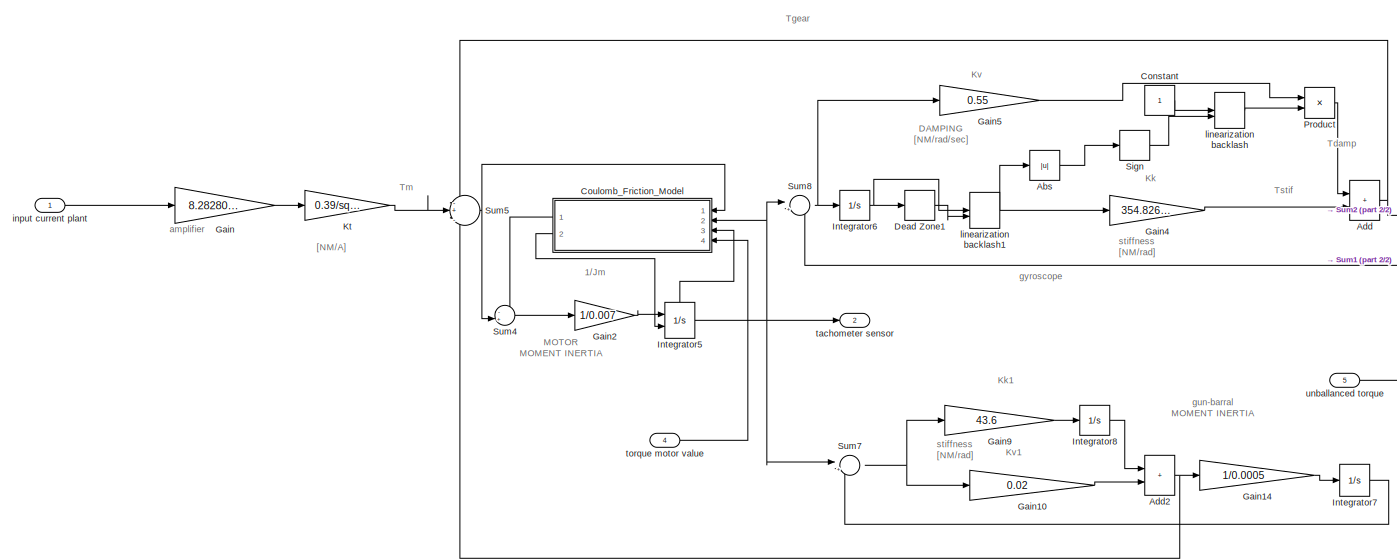
[diagram: plant - part 1/2, left side, full height]
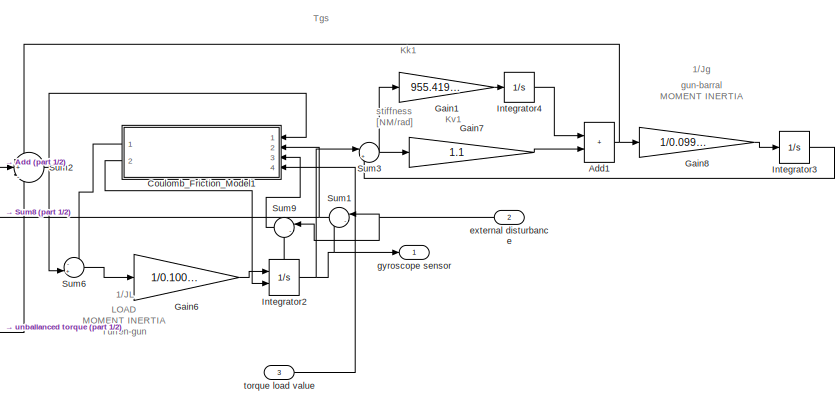
[diagram: plant - part 2/2, middle right region]
BLOCK [SubSystem] plant
  Description = elevation-plant
  PortSchema = {"entries":[{"content":{"sides":[{"content":{"connectorIds":["In1"]},"type":"ConnectorPlacement.EquallySpacedRectSide","uuid":"e984d65b-c4b2-4f64-9138-3f858c9b51b0"},{"content":{"connectorIds":["Out1","Out2"],"side":"RIGHT"},"type":"ConnectorPlacement.EquallySpacedRectSide","uuid":"67e0a38d-5f11-4d68-ba2b-c2f31a8ec962"},{"content":{"connectorIds":["In2","In3","In4","In5"],"side":"TOP"},"type":"Con...<+270ch>
  Ports = [5, 2]
  RequestExecContextInheritance = off
BLOCK [Abs] plant/Abs
  SaturateOnIntegerOverflow = off
BLOCK [Sum] plant/Add
  IconShape = rectangular
  Ports = [2, 1]
BLOCK [Sum] plant/Add1
  IconShape = rectangular
  Ports = [2, 1]
BLOCK [Sum] plant/Add2
  IconShape = rectangular
  Ports = [2, 1]
BLOCK [Constant] plant/Constant
BLOCK [SubSystem] plant/Coulomb_Friction_Model
  NameLocation = top
  Ports = [4, 2]
  RequestExecContextInheritance = off
BLOCK [Abs] plant/Coulomb_Friction_Model/Abs2
  SaturateOnIntegerOverflow = off
  ZeroCross = off
BLOCK [Outport] plant/Coulomb_Friction_Model/Friction_Torque
BLOCK [Gain] plant/Coulomb_Friction_Model/Gain
  Gain = 1.1
BLOCK [Gain] plant/Coulomb_Friction_Model/Gain1
BLOCK [Gain] plant/Coulomb_Friction_Model/Gain2
  Gain = 100
BLOCK [Gain] plant/Coulomb_Friction_Model/Gain3
  Gain = 100
BLOCK [HitCross] plant/Coulomb_Friction_Model/Hit Crossing
  Ports = [1, 1]
  ZeroCross = off
BLOCK [MinMax] plant/Coulomb_Friction_Model/MinMax
  Inputs = 2
  Ports = [2, 1]
BLOCK [Product] plant/Coulomb_Friction_Model/Product1
  Ports = [2, 1]
  RndMeth = Zero
BLOCK [Product] plant/Coulomb_Friction_Model/Product2
  Ports = [2, 1]
  RndMeth = Zero
BLOCK [Switch] plant/Coulomb_Friction_Model/Sw6
  Threshold = 0.5
  ZeroCross = off
BLOCK [Trigonometry] plant/Coulomb_Friction_Model/Tanh
  Operator = tanh
  Ports = [1, 1]
BLOCK [Trigonometry] plant/Coulomb_Friction_Model/Tanh1
  Operator = tanh
  Ports = [1, 1]
BLOCK [Inport] plant/Coulomb_Friction_Model/Torque
BLOCK [Outport] plant/Coulomb_Friction_Model/reset velocity
  Port = 2
BLOCK [Inport] plant/Coulomb_Friction_Model/torque motor value
  Port = 4
BLOCK [Inport] plant/Coulomb_Friction_Model/velocity
  Port = 2
BLOCK [Inport] plant/Coulomb_Friction_Model/velocity state
  Port = 3
BLOCK [SubSystem] plant/Coulomb_Friction_Model1
  NameLocation = top
  Ports = [4, 2]
  RequestExecContextInheritance = off
BLOCK [Abs] plant/Coulomb_Friction_Model1/Abs2
  SaturateOnIntegerOverflow = off
  ZeroCross = off
BLOCK [Outport] plant/Coulomb_Friction_Model1/Friction_Torque
BLOCK [Gain] plant/Coulomb_Friction_Model1/Gain
  Gain = 1.1
BLOCK [Gain] plant/Coulomb_Friction_Model1/Gain1
BLOCK [Gain] plant/Coulomb_Friction_Model1/Gain2
  Gain = 100
BLOCK [Gain] plant/Coulomb_Friction_Model1/Gain3
  Gain = 100
BLOCK [HitCross] plant/Coulomb_Friction_Model1/Hit Crossing
  Ports = [1, 1]
  ZeroCross = off
BLOCK [MinMax] plant/Coulomb_Friction_Model1/MinMax
  Inputs = 2
  Ports = [2, 1]
BLOCK [Product] plant/Coulomb_Friction_Model1/Product1
  Ports = [2, 1]
  RndMeth = Zero
BLOCK [Product] plant/Coulomb_Friction_Model1/Product2
  Ports = [2, 1]
  RndMeth = Zero
BLOCK [Switch] plant/Coulomb_Friction_Model1/Sw6
  Threshold = 0.5
  ZeroCross = off
BLOCK [Trigonometry] plant/Coulomb_Friction_Model1/Tanh
  Operator = tanh
  Ports = [1, 1]
BLOCK [Trigonometry] plant/Coulomb_Friction_Model1/Tanh1
  Operator = tanh
  Ports = [1, 1]
BLOCK [Inport] plant/Coulomb_Friction_Model1/Torque
BLOCK [Outport] plant/Coulomb_Friction_Model1/reset velocity
  Port = 2
BLOCK [Inport] plant/Coulomb_Friction_Model1/torque load value
  Port = 4
BLOCK [Inport] plant/Coulomb_Friction_Model1/velocity
  Port = 2
BLOCK [Inport] plant/Coulomb_Friction_Model1/velocity state
  Port = 3
BLOCK [DeadZone] plant/Dead Zone1
  LowerValue = -0.07*10^-3
  SaturateOnIntegerOverflow = off
  UpperValue = 0.07*10^-3
  ZeroCross = off
BLOCK [Gain] plant/Gain
  Gain = 8.282809728
BLOCK [Gain] plant/Gain1
  Gain = 955.4190534
BLOCK [Gain] plant/Gain10
  Gain = 0.02
BLOCK [Gain] plant/Gain14
  Gain = 1/0.0005
BLOCK [Gain] plant/Gain2
  Gain = 1/0.007
BLOCK [Gain] plant/Gain4
  Gain = 354.8268849
BLOCK [Gain] plant/Gain5
  Gain = 0.55
BLOCK [Gain] plant/Gain6
  Gain = 1/0.1005695118
BLOCK [Gain] plant/Gain7
  Gain = 1.1
BLOCK [Gain] plant/Gain8
  Gain = 1/0.0994454608
BLOCK [Gain] plant/Gain9
  Gain = 43.6
BLOCK [Integrator] plant/Integrator2
  ExternalReset = rising
  Ports = [2, 1, 0, 0, 1]
  ShowStatePort = on
  ZeroCross = off
BLOCK [Integrator] plant/Integrator3
  Ports = [1, 1]
BLOCK [Integrator] plant/Integrator4
  Ports = [1, 1]
BLOCK [Integrator] plant/Integrator5
  ExternalReset = rising
  Ports = [2, 1, 0, 0, 1]
  ShowStatePort = on
  ZeroCross = off
BLOCK [Integrator] plant/Integrator6
  Ports = [1, 1]
BLOCK [Integrator] plant/Integrator7
  Ports = [1, 1]
BLOCK [Integrator] plant/Integrator8
  Ports = [1, 1]
BLOCK [Gain] plant/Kt
  Gain = 0.39/sqrt(3)
BLOCK [Product] plant/Product
  Ports = [2, 1]
BLOCK [Signum] plant/Sign
BLOCK [Sum] plant/Sum1
  Inputs = |-+
  Ports = [2, 1]
BLOCK [Sum] plant/Sum2
  Inputs = -+|-
  Ports = [3, 1]
BLOCK [Sum] plant/Sum3
  Inputs = |+-
  Ports = [2, 1]
BLOCK [Sum] plant/Sum4
  Inputs = -+|
  Ports = [2, 1]
BLOCK [Sum] plant/Sum5
  Inputs = -+|-
  Ports = [3, 1]
BLOCK [Sum] plant/Sum6
  Inputs = -+|
  Ports = [2, 1]
BLOCK [Sum] plant/Sum7
  Inputs = |+-
  Ports = [2, 1]
BLOCK [Sum] plant/Sum8
  Inputs = |+-
  Ports = [2, 1]
BLOCK [Sum] plant/Sum9
  Inputs = |-+
  Ports = [2, 1]
BLOCK [Inport] plant/external disturbance
  Port = 2
BLOCK [Outport] plant/gyroscope sensor
BLOCK [Inport] plant/input current plant
BLOCK [ManualSwitch] plant/linearization backlash
  CurrentSetting = 0
BLOCK [ManualSwitch] plant/linearization backlash1
  CurrentSetting = 0
BLOCK [Outport] plant/tachometer sensor
  Port = 2
BLOCK [Inport] plant/torque load value
  Port = 3
BLOCK [Inport] plant/torque motor value
  Port = 4
BLOCK [Inport] plant/unballanced torque
  Port = 5
BLOCK [Reference] ramp  REF=simulink/Sources/Ramp
  Ports = [0, 1]
  SourceBlock = simulink/Sources/Ramp
  SourceProductBaseCode = SL
  SourceType = Ramp
BLOCK [Step] step 0.05[A]
  After = 0.05
  SampleTime = 0
  ZeroCross = off
BLOCK [Goto] theta[rad]
  GotoTag = angular_position_or_speed
BLOCK [SubSystem] untitledPanel
  IsWebBlockPanel = on
  Ports = []
  RequestExecContextInheritance = off
  Tag = HiddenForWebPanel
BLOCK [CallbackButton] untitledPanel/Callback Button1
  PanelInfo = {"panelId":"panelId-3d7ee8a4-1926-4a42-ae9e-9d07c4a1cb87","type":"panelChild","version":"2019b","zIndex":1500002}
  Tag = HiddenForWebPanel
BLOCK [PanelWebBlock] untitledPanel/panelInfo
  PanelInfo = {"compacted":false,"height":84,"isActiveTab":true,"left":1069,"name":"Panel","panelId":"panelId-3d7ee8a4-1926-4a42-ae9e-9d07c4a1cb87","tabIndex":0,"tabbedSetId":"tabbedSet8564127506","top":912,"type":"panel","version":"2019b","visible":true,"width":178,"zIndex":1500002}
  Tag = HiddenForWebPanel
ANNOTATION (root): input:Time domain
ANNOTATION (root): shooting
ANNOTATION (root): gyroscope
ANNOTATION (root): ELEVATION MODEL
ANNOTATION (root): Friction values
ANNOTATION (root): Unballanced torque
ANNOTATION (root): acceleration
ANNOTATION (root): dynamic target
ANNOTATION (root): feedforward
ANNOTATION (root): ground distribution
ANNOTATION (root): gun plant with non linear elements elevation axis
ANNOTATION (root): outputs scopes
ANNOTATION (root): pod plant with non linear elements
ANNOTATION (root): position controller
ANNOTATION (root): tachometer
ANNOTATION (root): spectrum analyzer
ANNOTATION (root): cancel or not acceleration distribution
ANNOTATION (root): cancel or not ground distribution
ANNOTATION (root): cancel or not synamic target
ANNOTATION (root): choose pod option
ANNOTATION (root): choose between acceleration distribution
ANNOTATION (root): choose sweep output signal pod or tachometer
ANNOTATION (root): choosing input
ANNOTATION (root): chosing sweep or not
ANNOTATION (root): chossing sensor gyro or tachometer
ANNOTATION (root): chossing setpoint friction feedforward gyroscope or tachometer
ANNOTATION (root): chossing which sensor controller gyro or tachometer
ANNOTATION (root): connect load friction-pod
ANNOTATION (root): connect motor friction-gun
ANNOTATION (root): connect motor friction-pod
ANNOTATION (root): connect position controller
ANNOTATION (root): connect friction feedforward
ANNOTATION (root): connect friction gun
ANNOTATION (root): connect ground distribution feedforward
ANNOTATION (root): connect inertia controller
ANNOTATION (root): connect setpoint feedforward
ANNOTATION (root): connect unballance moment gun
ANNOTATION (root): connect unballance moment pod option 1
ANNOTATION (root): connect unballance moment pod option 2
ANNOTATION (root): connect unballanced moment feedforward
ANNOTATION (root): connect feedforward ground distribution
ANNOTATION (root): connect setpoint friction feedforward
ANNOTATION (root): disconnect input or not
ANNOTATION plant: 1/J m
ANNOTATION plant: 1/J L
ANNOTATION plant: 1/Jg
ANNOTATION plant: K k1
ANNOTATION plant: K k
ANNOTATION plant: T gear
ANNOTATION plant: gyroscope
ANNOTATION plant: K v1
ANNOTATION plant: LOAD MOMENT INERTIA Turren-gun
ANNOTATION plant: T m
ANNOTATION plant: T damp
ANNOTATION plant: T stif
ANNOTATION plant: T gs
ANNOTATION plant: K v
ANNOTATION plant: DAMPING [NM/rad/sec]
ANNOTATION plant: MOTOR MOMENT INERTIA
ANNOTATION plant: [NM/A]
ANNOTATION plant: amplifier
ANNOTATION plant: gun-barral MOMENT INERTIA
ANNOTATION plant: stiffness [NM/rad]
LINE Constant10:1 -> Manual Switch7:2
LINE Constant11:1 -> Manual Switch8:2
LINE Constant12:1 -> Manual Switch9:2
LINE Constant13:1 -> Manual Switch10:2
LINE Constant14:1 -> open loop or close:2
LINE Constant15:1 -> Manual Switch15:2
LINE Constant16:1 -> open loop or close pod:2
LINE Constant1:1 -> Subsystem1:enable
LINE Constant2:1 -> Manual Switch3:2
LINE Constant3:1 -> Manual Switch4:1
LINE Constant4:1 -> Manual Switch4:2
LINE Constant5:1 -> Manual Switch5:1
LINE Constant6:1 -> Manual Switch5:2
LINE Constant7:1 -> Manual Switch6:1
LINE Constant8:1 -> Manual Switch6:2
LINE Constant9:1 -> Manual Switch7:1
LINE Constant:1 -> Manual Switch2:2
LINE From Workspace1:1 -> Manual Switch1:1
LINE From Workspace2:1 -> Manual Switch1:2
LINE From Workspace3:1 -> Manual Switch34:1
LINE From Workspace4:1 -> Gain3:1
LINE From Workspace5:1 -> Gain4:1
LINE From Workspace:1 -> Gain:1
LINE From10:1 -> Sum1:1
LINE From11:1 -> open loop or close:1
LINE From12:1 -> Subsystem8:1
LINE From13:1 -> Subsystem6:1
LINE From14:1 -> Subsystem7:1
LINE From15:1 -> Subsystem9:1
LINE From16:1 -> Subsystem9:2
LINE From17:1 -> Subsystem10:1
LINE From18:1 -> Subsystem:1
LINE From19:1 -> Subsystem11:2
NET From1:1 -> Gain17:1, Subsystem1:1
LINE From20:1 -> Subsystem11:1
LINE From21:1 -> Subsystem3:1
LINE From22:1 -> Subsystem2:1
LINE From23:1 -> Subsystem4:1
LINE From24:1 -> Subsystem13:4
LINE From25:1 -> Subsystem13:5
LINE From26:1 -> Subsystem13:2
LINE From27:1 -> Subsystem13:3
LINE From28:1 -> Subsystem17:1
LINE From29:1 -> open loop or close pod:1
LINE From2:1 -> Subsystem2:2
LINE From30:1 -> Manual Switch25:1
LINE From31:1 -> Manual Switch25:2
LINE From32:1 -> Subsystem13:6
LINE From33:1 -> Subsystem14:1
LINE From34:1 -> Subsystem15:1
LINE From35:1 -> Manual Switch28:1
LINE From36:1 -> Manual Switch28:2
LINE From37:1 -> Subsystem16:3
LINE From38:1 -> Subsystem16:1
LINE From39:1 -> Subsystem16:2
LINE From3:1 -> Subsystem3:2
LINE From40:1 -> Sum4:1
LINE From41:1 -> Subsystem17:2
LINE From42:1 -> Manual Switch33:1
LINE From44:1 -> display dynamic target:1
LINE From45:1 -> display ground distribution [rad//sec]:1
LINE From46:1 -> display input:1
LINE From47:1 -> display tracking target:1
LINE From48:1 -> display tracking target:3
LINE From49:1 -> display tracking target:2
LINE From4:1 -> Manual Switch11:1
LINE From50:1 -> error tracking target:1
LINE From51:1 ->  synchronization system stability accuaracy:1
LINE From52:1 ->  synchronization system stability accuaracy:2
LINE From53:1 ->  synchronization system stability accuaracy:3
LINE From54:1 -> Error between pod position to gun position1:1
LINE From55:1 -> display angels:1
LINE From56:1 -> display angels:2
LINE From57:1 -> Scope1:3
LINE From58:1 -> Scope1:2
LINE From59:1 -> Gain1:1
LINE From5:1 -> plant:2
LINE From65:1 -> display angular speed:1
LINE From66:1 -> display angular speed:2
LINE From67:1 -> Scope1:1
LINE From6:1 -> plant:5
LINE From7:1 -> plant:4
LINE From8:1 -> plant:3
LINE From9:1 -> Subsystem4:2
LINE From:1 -> Subsystem:2
LINE Gain17:1 -> SpectrumInOut:1
LINE Gain18:1 -> SpectrumInOut:2
LINE Gain1:1 -> Scope1:4
LINE Gain3:1 -> display firing acceleration:1
LINE Gain4:1 -> display driving acceleration:1
LINE Gain:1 -> Manual Switch3:1
LINE Integrator1:1 -> Goto19:1
LINE Integrator:1 -> Goto11:1
LINE Manual Switch10:1 -> Goto8:1
LINE Manual Switch11:1 -> Goto9:1
NET Manual Switch12:1 -> Goto10:1, Integrator:1
LINE Manual Switch13:1 -> Sum:1
LINE Manual Switch14:1 -> Manual Switch15:1
LINE Manual Switch15:1 -> Sum3:3
LINE Manual Switch16:1 -> theta[rad]:1
LINE Manual Switch17:1 -> Manual Switch18:1
LINE Manual Switch18:1 -> Sum:2
LINE Manual Switch19:1 -> Sum3:2
LINE Manual Switch1:1 -> Manual Switch2:1
LINE Manual Switch20:1 -> Sum3:1
LINE Manual Switch21:1 -> Sum3:4
LINE Manual Switch22:1 -> Manual Switch24:1
LINE Manual Switch23:1 -> Manual Switch24:2
NET Manual Switch24:1 -> Goto18:1, Integrator1:1
LINE Manual Switch25:1 -> Goto12:1
LINE Manual Switch26:1 -> Manual Switch29:1
LINE Manual Switch27:1 -> Sum5:2
LINE Manual Switch28:1 -> Subsystem15:2
LINE Manual Switch29:1 -> Sum5:1
LINE Manual Switch2:1 -> Goto1:1
LINE Manual Switch30:1 -> Manual Switch27:1
LINE Manual Switch31:1 -> Manual Switch32:1
LINE Manual Switch32:1 -> Sum5:3
LINE Manual Switch33:1 -> Goto23:1
LINE Manual Switch34:1 -> Goto22:1
LINE Manual Switch3:1 -> Goto:1
LINE Manual Switch4:1 -> Goto2:1
LINE Manual Switch5:1 -> Goto4:1
LINE Manual Switch6:1 -> Goto5:1
LINE Manual Switch7:1 -> Goto6:1
LINE Manual Switch8:1 -> Goto7:1
LINE Manual Switch9:1 -> Goto15:1
LINE Manual Switch:1 -> Manual Switch16:1
LINE Manual Variant Source:1 -> Manual Switch:1
LINE Pulse Generator for syncronization:1 -> Manual Variant Source:4
LINE Step 1[A]:1 -> Manual Variant Source:1
LINE Subsystem/Constant:1 -> Subsystem/Sum:2
LINE Subsystem/Cos1:1 -> Subsystem/Product:1
LINE Subsystem/Gain3:1 -> Subsystem/unballanced torque:1
LINE Subsystem/Integrator:1 -> Subsystem/Cos1:1
LINE Subsystem/Product:1 -> Subsystem/Gain3:1
LINE Subsystem/Sum:1 -> Subsystem/Product:2
LINE Subsystem/acceleration:1 -> Subsystem/Sum:1
LINE Subsystem/gyroscope angular speed:1 -> Subsystem/Integrator:1
NET Subsystem1/Chirp Signal1:1 -> Subsystem1/Scope2:1, Subsystem1/gain 3:1
LINE Subsystem1/Input:1 -> Subsystem1/Mux2:2
LINE Subsystem1/Mux2:1 -> Subsystem1/TSABAD_out_log:1
NET Subsystem1/gain 3:1 -> Subsystem1/Mux2:1, Subsystem1/Output2:1
LINE Subsystem10/Gain3:1 -> Subsystem10/feedforward ground distribution:1
LINE Subsystem10/Transfer Fcn1:1 -> Subsystem10/Gain3:1
LINE Subsystem10/external distribution:1 -> Subsystem10/Transfer Fcn1:1
LINE Subsystem10:1 -> Manual Switch20:1
LINE Subsystem11/Constant:1 -> Subsystem11/Sum:2
LINE Subsystem11/Cos1:1 -> Subsystem11/Product:1
LINE Subsystem11/Gain1:1 -> Subsystem11/Gain:1
LINE Subsystem11/Gain3:1 -> Subsystem11/Gain1:1
LINE Subsystem11/Gain:1 -> Subsystem11/unballanced torque:1
LINE Subsystem11/Integrator:1 -> Subsystem11/Cos1:1
LINE Subsystem11/Product:1 -> Subsystem11/Gain3:1
LINE Subsystem11/Sum:1 -> Subsystem11/Product:2
LINE Subsystem11/acceleration:1 -> Subsystem11/Sum:1
LINE Subsystem11/gyroscope angular speed:1 -> Subsystem11/Integrator:1
LINE Subsystem11:1 -> Manual Switch21:1
LINE Subsystem12/Gain4:1 -> Subsystem12/Integrator1:1
LINE Subsystem12/Gain5:1 -> Subsystem12/Sum2:2
NET Subsystem12/Gain:1 -> Subsystem12/Gain4:1, Subsystem12/Gain5:1
LINE Subsystem12/Integrator1:1 -> Subsystem12/Sum2:1
LINE Subsystem12/Sum2:1 -> Subsystem12/current input:1
LINE Subsystem12/error input:1 -> Subsystem12/Gain:1
LINE Subsystem12:1 -> Sum6:2
LINE Subsystem13/ plant pod elevation  option 1/Constant:1 -> Subsystem13/ plant pod elevation  option 1/Variable Time Delay:2
LINE Subsystem13/ plant pod elevation  option 1/Coulomb_Friction_Model/Abs2:1 -> Subsystem13/ plant pod elevation  option 1/Coulomb_Friction_Model/MinMax:2
LINE Subsystem13/ plant pod elevation  option 1/Coulomb_Friction_Model/Gain1:1 -> Subsystem13/ plant pod elevation  option 1/Coulomb_Friction_Model/Tanh:1
LINE Subsystem13/ plant pod elevation  option 1/Coulomb_Friction_Model/Gain2:1 -> Subsystem13/ plant pod elevation  option 1/Coulomb_Friction_Model/MinMax:1
LINE Subsystem13/ plant pod elevation  option 1/Coulomb_Friction_Model/Gain3:1 -> Subsystem13/ plant pod elevation  option 1/Coulomb_Friction_Model/Tanh1:1
LINE Subsystem13/ plant pod elevation  option 1/Coulomb_Friction_Model/Gain:1 -> Subsystem13/ plant pod elevation  option 1/Coulomb_Friction_Model/Product1:1
NET Subsystem13/ plant pod elevation  option 1/Coulomb_Friction_Model/Hit Crossing:1 -> Subsystem13/ plant pod elevation  option 1/Coulomb_Friction_Model/Sw6:2, Subsystem13/ plant pod elevation  option 1/Coulomb_Friction_Model/reset velocity:1
LINE Subsystem13/ plant pod elevation  option 1/Coulomb_Friction_Model/MinMax:1 -> Subsystem13/ plant pod elevation  option 1/Coulomb_Friction_Model/Product2:1
LINE Subsystem13/ plant pod elevation  option 1/Coulomb_Friction_Model/Product1:1 -> Subsystem13/ plant pod elevation  option 1/Coulomb_Friction_Model/Sw6:3
LINE Subsystem13/ plant pod elevation  option 1/Coulomb_Friction_Model/Product2:1 -> Subsystem13/ plant pod elevation  option 1/Coulomb_Friction_Model/Sw6:1
LINE Subsystem13/ plant pod elevation  option 1/Coulomb_Friction_Model/Sw6:1 -> Subsystem13/ plant pod elevation  option 1/Coulomb_Friction_Model/Friction_Torque:1
LINE Subsystem13/ plant pod elevation  option 1/Coulomb_Friction_Model/Tanh1:1 -> Subsystem13/ plant pod elevation  option 1/Coulomb_Friction_Model/Product1:2
LINE Subsystem13/ plant pod elevation  option 1/Coulomb_Friction_Model/Tanh:1 -> Subsystem13/ plant pod elevation  option 1/Coulomb_Friction_Model/Product2:2
NET Subsystem13/ plant pod elevation  option 1/Coulomb_Friction_Model/Torque:1 -> Subsystem13/ plant pod elevation  option 1/Coulomb_Friction_Model/Abs2:1, Subsystem13/ plant pod elevation  option 1/Coulomb_Friction_Model/Gain1:1
NET Subsystem13/ plant pod elevation  option 1/Coulomb_Friction_Model/motor torque value pod:1 -> Subsystem13/ plant pod elevation  option 1/Coulomb_Friction_Model/Gain2:1, Subsystem13/ plant pod elevation  option 1/Coulomb_Friction_Model/Gain:1
LINE Subsystem13/ plant pod elevation  option 1/Coulomb_Friction_Model/velocity state:1 -> Subsystem13/ plant pod elevation  option 1/Coulomb_Friction_Model/Hit Crossing:1
LINE Subsystem13/ plant pod elevation  option 1/Coulomb_Friction_Model/velocity:1 -> Subsystem13/ plant pod elevation  option 1/Coulomb_Friction_Model/Gain3:1
LINE Subsystem13/ plant pod elevation  option 1/Coulomb_Friction_Model1/Abs2:1 -> Subsystem13/ plant pod elevation  option 1/Coulomb_Friction_Model1/MinMax:2
LINE Subsystem13/ plant pod elevation  option 1/Coulomb_Friction_Model1/Gain1:1 -> Subsystem13/ plant pod elevation  option 1/Coulomb_Friction_Model1/Tanh:1
LINE Subsystem13/ plant pod elevation  option 1/Coulomb_Friction_Model1/Gain2:1 -> Subsystem13/ plant pod elevation  option 1/Coulomb_Friction_Model1/MinMax:1
LINE Subsystem13/ plant pod elevation  option 1/Coulomb_Friction_Model1/Gain3:1 -> Subsystem13/ plant pod elevation  option 1/Coulomb_Friction_Model1/Tanh1:1
LINE Subsystem13/ plant pod elevation  option 1/Coulomb_Friction_Model1/Gain:1 -> Subsystem13/ plant pod elevation  option 1/Coulomb_Friction_Model1/Product1:1
NET Subsystem13/ plant pod elevation  option 1/Coulomb_Friction_Model1/Hit Crossing:1 -> Subsystem13/ plant pod elevation  option 1/Coulomb_Friction_Model1/Sw6:2, Subsystem13/ plant pod elevation  option 1/Coulomb_Friction_Model1/reset velocity:1
LINE Subsystem13/ plant pod elevation  option 1/Coulomb_Friction_Model1/MinMax:1 -> Subsystem13/ plant pod elevation  option 1/Coulomb_Friction_Model1/Product2:1
LINE Subsystem13/ plant pod elevation  option 1/Coulomb_Friction_Model1/Product1:1 -> Subsystem13/ plant pod elevation  option 1/Coulomb_Friction_Model1/Sw6:3
LINE Subsystem13/ plant pod elevation  option 1/Coulomb_Friction_Model1/Product2:1 -> Subsystem13/ plant pod elevation  option 1/Coulomb_Friction_Model1/Sw6:1
LINE Subsystem13/ plant pod elevation  option 1/Coulomb_Friction_Model1/Sw6:1 -> Subsystem13/ plant pod elevation  option 1/Coulomb_Friction_Model1/Friction_Torque:1
LINE Subsystem13/ plant pod elevation  option 1/Coulomb_Friction_Model1/Tanh1:1 -> Subsystem13/ plant pod elevation  option 1/Coulomb_Friction_Model1/Product1:2
LINE Subsystem13/ plant pod elevation  option 1/Coulomb_Friction_Model1/Tanh:1 -> Subsystem13/ plant pod elevation  option 1/Coulomb_Friction_Model1/Product2:2
NET Subsystem13/ plant pod elevation  option 1/Coulomb_Friction_Model1/Torque:1 -> Subsystem13/ plant pod elevation  option 1/Coulomb_Friction_Model1/Abs2:1, Subsystem13/ plant pod elevation  option 1/Coulomb_Friction_Model1/Gain1:1
NET Subsystem13/ plant pod elevation  option 1/Coulomb_Friction_Model1/torque load value pod:1 -> Subsystem13/ plant pod elevation  option 1/Coulomb_Friction_Model1/Gain2:1, Subsystem13/ plant pod elevation  option 1/Coulomb_Friction_Model1/Gain:1
LINE Subsystem13/ plant pod elevation  option 1/Coulomb_Friction_Model1/velocity state:1 -> Subsystem13/ plant pod elevation  option 1/Coulomb_Friction_Model1/Hit Crossing:1
LINE Subsystem13/ plant pod elevation  option 1/Coulomb_Friction_Model1/velocity:1 -> Subsystem13/ plant pod elevation  option 1/Coulomb_Friction_Model1/Gain3:1
LINE Subsystem13/ plant pod elevation  option 1/Coulomb_Friction_Model1:1 -> Subsystem13/ plant pod elevation  option 1/Sum7:1
LINE Subsystem13/ plant pod elevation  option 1/Coulomb_Friction_Model1:2 -> Subsystem13/ plant pod elevation  option 1/Integrator2:2
LINE Subsystem13/ plant pod elevation  option 1/Coulomb_Friction_Model:1 -> Subsystem13/ plant pod elevation  option 1/Sum6:1
LINE Subsystem13/ plant pod elevation  option 1/Coulomb_Friction_Model:2 -> Subsystem13/ plant pod elevation  option 1/Integrator:2
LINE Subsystem13/ plant pod elevation  option 1/Gain1:1 -> Subsystem13/ plant pod elevation  option 1/Integrator:1
LINE Subsystem13/ plant pod elevation  option 1/Gain2:1 -> Subsystem13/ plant pod elevation  option 1/Integrator2:1
LINE Subsystem13/ plant pod elevation  option 1/Gain3:1 -> Subsystem13/ plant pod elevation  option 1/Integrator3:1
LINE Subsystem13/ plant pod elevation  option 1/Gain4:1 -> Subsystem13/ plant pod elevation  option 1/Integrator1:1
LINE Subsystem13/ plant pod elevation  option 1/Gain5:1 -> Subsystem13/ plant pod elevation  option 1/Sum2:2
LINE Subsystem13/ plant pod elevation  option 1/Gain6:1 -> Subsystem13/ plant pod elevation  option 1/Sum5:2
LINE Subsystem13/ plant pod elevation  option 1/Gain7:1 -> Subsystem13/ plant pod elevation  option 1/Integrator4:1
LINE Subsystem13/ plant pod elevation  option 1/Gain8:1 -> Subsystem13/ plant pod elevation  option 1/Gain:1
LINE Subsystem13/ plant pod elevation  option 1/Gain:1 -> Subsystem13/ plant pod elevation  option 1/Sum3:1
LINE Subsystem13/ plant pod elevation  option 1/Integrator1:1 -> Subsystem13/ plant pod elevation  option 1/Sum2:1
NET Subsystem13/ plant pod elevation  option 1/Integrator2:1 -> Subsystem13/ plant pod elevation  option 1/Sum4:1, Subsystem13/ plant pod elevation  option 1/Sum8:2, Subsystem13/ plant pod elevation  option 1/pod angular speed elevation:1
LINE Subsystem13/ plant pod elevation  option 1/Integrator2:state -> Subsystem13/ plant pod elevation  option 1/Sum9:2
LINE Subsystem13/ plant pod elevation  option 1/Integrator3:1 -> Subsystem13/ plant pod elevation  option 1/Sum5:1
LINE Subsystem13/ plant pod elevation  option 1/Integrator4:1 -> Subsystem13/ plant pod elevation  option 1/Sum4:2
NET Subsystem13/ plant pod elevation  option 1/Integrator:1 -> Subsystem13/ plant pod elevation  option 1/Coulomb_Friction_Model:2, Subsystem13/ plant pod elevation  option 1/Sum1:1, Subsystem13/ plant pod elevation  option 1/motor angular speed tachometer :1
LINE Subsystem13/ plant pod elevation  option 1/Integrator:state -> Subsystem13/ plant pod elevation  option 1/Coulomb_Friction_Model:3
NET Subsystem13/ plant pod elevation  option 1/Sum1:1 -> Subsystem13/ plant pod elevation  option 1/Gain4:1, Subsystem13/ plant pod elevation  option 1/Gain5:1
NET Subsystem13/ plant pod elevation  option 1/Sum2:1 -> Subsystem13/ plant pod elevation  option 1/Sum3:2, Subsystem13/ plant pod elevation  option 1/Sum:1
NET Subsystem13/ plant pod elevation  option 1/Sum3:1 -> Subsystem13/ plant pod elevation  option 1/Coulomb_Friction_Model:1, Subsystem13/ plant pod elevation  option 1/Sum6:2
NET Subsystem13/ plant pod elevation  option 1/Sum4:1 -> Subsystem13/ plant pod elevation  option 1/Gain3:1, Subsystem13/ plant pod elevation  option 1/Gain6:1
NET Subsystem13/ plant pod elevation  option 1/Sum5:1 -> Subsystem13/ plant pod elevation  option 1/Gain7:1, Subsystem13/ plant pod elevation  option 1/Sum:2
LINE Subsystem13/ plant pod elevation  option 1/Sum6:1 -> Subsystem13/ plant pod elevation  option 1/Gain1:1
LINE Subsystem13/ plant pod elevation  option 1/Sum7:1 -> Subsystem13/ plant pod elevation  option 1/Gain2:1
NET Subsystem13/ plant pod elevation  option 1/Sum8:1 -> Subsystem13/ plant pod elevation  option 1/Coulomb_Friction_Model1:2, Subsystem13/ plant pod elevation  option 1/Sum1:2
LINE Subsystem13/ plant pod elevation  option 1/Sum9:1 -> Subsystem13/ plant pod elevation  option 1/Coulomb_Friction_Model1:3
NET Subsystem13/ plant pod elevation  option 1/Sum:1 -> Subsystem13/ plant pod elevation  option 1/Coulomb_Friction_Model1:1, Subsystem13/ plant pod elevation  option 1/Sum7:2
LINE Subsystem13/ plant pod elevation  option 1/Variable Time Delay:1 -> Subsystem13/ plant pod elevation  option 1/Gain8:1
LINE Subsystem13/ plant pod elevation  option 1/current input:1 -> Subsystem13/ plant pod elevation  option 1/Variable Time Delay:1
NET Subsystem13/ plant pod elevation  option 1/external distribution:1 -> Subsystem13/ plant pod elevation  option 1/Sum8:1, Subsystem13/ plant pod elevation  option 1/Sum9:1
LINE Subsystem13/ plant pod elevation  option 1/motor torque value pod:1 -> Subsystem13/ plant pod elevation  option 1/Coulomb_Friction_Model:4
LINE Subsystem13/ plant pod elevation  option 1/torque load value pod:1 -> Subsystem13/ plant pod elevation  option 1/Coulomb_Friction_Model1:4
LINE Subsystem13/ plant pod elevation  option 1/unballanced torque option1:1 -> Subsystem13/ plant pod elevation  option 1/Sum:3
LINE Subsystem13/ plant pod elevation  option 1:1 -> Subsystem13/pod angular speed elevation option1:1
LINE Subsystem13/ plant pod elevation  option 1:2 -> Subsystem13/motor angular speed tachometer option1:1
LINE Subsystem13/ plant pod elevation option 2/Constant:1 -> Subsystem13/ plant pod elevation option 2/Variable Time Delay:2
LINE Subsystem13/ plant pod elevation option 2/Coulomb_Friction_Model/Abs2:1 -> Subsystem13/ plant pod elevation option 2/Coulomb_Friction_Model/MinMax:2
LINE Subsystem13/ plant pod elevation option 2/Coulomb_Friction_Model/Gain1:1 -> Subsystem13/ plant pod elevation option 2/Coulomb_Friction_Model/Tanh:1
LINE Subsystem13/ plant pod elevation option 2/Coulomb_Friction_Model/Gain2:1 -> Subsystem13/ plant pod elevation option 2/Coulomb_Friction_Model/MinMax:1
LINE Subsystem13/ plant pod elevation option 2/Coulomb_Friction_Model/Gain3:1 -> Subsystem13/ plant pod elevation option 2/Coulomb_Friction_Model/Tanh1:1
LINE Subsystem13/ plant pod elevation option 2/Coulomb_Friction_Model/Gain:1 -> Subsystem13/ plant pod elevation option 2/Coulomb_Friction_Model/Product1:1
NET Subsystem13/ plant pod elevation option 2/Coulomb_Friction_Model/Hit Crossing:1 -> Subsystem13/ plant pod elevation option 2/Coulomb_Friction_Model/Sw6:2, Subsystem13/ plant pod elevation option 2/Coulomb_Friction_Model/reset velocity:1
LINE Subsystem13/ plant pod elevation option 2/Coulomb_Friction_Model/MinMax:1 -> Subsystem13/ plant pod elevation option 2/Coulomb_Friction_Model/Product2:1
LINE Subsystem13/ plant pod elevation option 2/Coulomb_Friction_Model/Product1:1 -> Subsystem13/ plant pod elevation option 2/Coulomb_Friction_Model/Sw6:3
LINE Subsystem13/ plant pod elevation option 2/Coulomb_Friction_Model/Product2:1 -> Subsystem13/ plant pod elevation option 2/Coulomb_Friction_Model/Sw6:1
LINE Subsystem13/ plant pod elevation option 2/Coulomb_Friction_Model/Sw6:1 -> Subsystem13/ plant pod elevation option 2/Coulomb_Friction_Model/Friction_Torque:1
LINE Subsystem13/ plant pod elevation option 2/Coulomb_Friction_Model/Tanh1:1 -> Subsystem13/ plant pod elevation option 2/Coulomb_Friction_Model/Product1:2
LINE Subsystem13/ plant pod elevation option 2/Coulomb_Friction_Model/Tanh:1 -> Subsystem13/ plant pod elevation option 2/Coulomb_Friction_Model/Product2:2
NET Subsystem13/ plant pod elevation option 2/Coulomb_Friction_Model/Torque:1 -> Subsystem13/ plant pod elevation option 2/Coulomb_Friction_Model/Abs2:1, Subsystem13/ plant pod elevation option 2/Coulomb_Friction_Model/Gain1:1
NET Subsystem13/ plant pod elevation option 2/Coulomb_Friction_Model/motor torque value:1 -> Subsystem13/ plant pod elevation option 2/Coulomb_Friction_Model/Gain2:1, Subsystem13/ plant pod elevation option 2/Coulomb_Friction_Model/Gain:1
LINE Subsystem13/ plant pod elevation option 2/Coulomb_Friction_Model/velocity state:1 -> Subsystem13/ plant pod elevation option 2/Coulomb_Friction_Model/Hit Crossing:1
LINE Subsystem13/ plant pod elevation option 2/Coulomb_Friction_Model/velocity:1 -> Subsystem13/ plant pod elevation option 2/Coulomb_Friction_Model/Gain3:1
LINE Subsystem13/ plant pod elevation option 2/Coulomb_Friction_Model1/Abs2:1 -> Subsystem13/ plant pod elevation option 2/Coulomb_Friction_Model1/MinMax:2
LINE Subsystem13/ plant pod elevation option 2/Coulomb_Friction_Model1/Gain1:1 -> Subsystem13/ plant pod elevation option 2/Coulomb_Friction_Model1/Tanh:1
LINE Subsystem13/ plant pod elevation option 2/Coulomb_Friction_Model1/Gain2:1 -> Subsystem13/ plant pod elevation option 2/Coulomb_Friction_Model1/MinMax:1
LINE Subsystem13/ plant pod elevation option 2/Coulomb_Friction_Model1/Gain3:1 -> Subsystem13/ plant pod elevation option 2/Coulomb_Friction_Model1/Tanh1:1
LINE Subsystem13/ plant pod elevation option 2/Coulomb_Friction_Model1/Gain:1 -> Subsystem13/ plant pod elevation option 2/Coulomb_Friction_Model1/Product1:1
NET Subsystem13/ plant pod elevation option 2/Coulomb_Friction_Model1/Hit Crossing:1 -> Subsystem13/ plant pod elevation option 2/Coulomb_Friction_Model1/Sw6:2, Subsystem13/ plant pod elevation option 2/Coulomb_Friction_Model1/reset velocity:1
LINE Subsystem13/ plant pod elevation option 2/Coulomb_Friction_Model1/MinMax:1 -> Subsystem13/ plant pod elevation option 2/Coulomb_Friction_Model1/Product2:1
LINE Subsystem13/ plant pod elevation option 2/Coulomb_Friction_Model1/Product1:1 -> Subsystem13/ plant pod elevation option 2/Coulomb_Friction_Model1/Sw6:3
LINE Subsystem13/ plant pod elevation option 2/Coulomb_Friction_Model1/Product2:1 -> Subsystem13/ plant pod elevation option 2/Coulomb_Friction_Model1/Sw6:1
LINE Subsystem13/ plant pod elevation option 2/Coulomb_Friction_Model1/Sw6:1 -> Subsystem13/ plant pod elevation option 2/Coulomb_Friction_Model1/Friction_Torque:1
LINE Subsystem13/ plant pod elevation option 2/Coulomb_Friction_Model1/Tanh1:1 -> Subsystem13/ plant pod elevation option 2/Coulomb_Friction_Model1/Product1:2
LINE Subsystem13/ plant pod elevation option 2/Coulomb_Friction_Model1/Tanh:1 -> Subsystem13/ plant pod elevation option 2/Coulomb_Friction_Model1/Product2:2
NET Subsystem13/ plant pod elevation option 2/Coulomb_Friction_Model1/Torque:1 -> Subsystem13/ plant pod elevation option 2/Coulomb_Friction_Model1/Abs2:1, Subsystem13/ plant pod elevation option 2/Coulomb_Friction_Model1/Gain1:1
NET Subsystem13/ plant pod elevation option 2/Coulomb_Friction_Model1/load torque value:1 -> Subsystem13/ plant pod elevation option 2/Coulomb_Friction_Model1/Gain2:1, Subsystem13/ plant pod elevation option 2/Coulomb_Friction_Model1/Gain:1
LINE Subsystem13/ plant pod elevation option 2/Coulomb_Friction_Model1/velocity state:1 -> Subsystem13/ plant pod elevation option 2/Coulomb_Friction_Model1/Hit Crossing:1
LINE Subsystem13/ plant pod elevation option 2/Coulomb_Friction_Model1/velocity:1 -> Subsystem13/ plant pod elevation option 2/Coulomb_Friction_Model1/Gain3:1
NET Subsystem13/ plant pod elevation option 2/Coulomb_Friction_Model1:1 -> Subsystem13/ plant pod elevation option 2/Scope:1, Subsystem13/ plant pod elevation option 2/Sum7:1
LINE Subsystem13/ plant pod elevation option 2/Coulomb_Friction_Model1:2 -> Subsystem13/ plant pod elevation option 2/Integrator2:2
LINE Subsystem13/ plant pod elevation option 2/Coulomb_Friction_Model:1 -> Subsystem13/ plant pod elevation option 2/Sum6:1
LINE Subsystem13/ plant pod elevation option 2/Coulomb_Friction_Model:2 -> Subsystem13/ plant pod elevation option 2/Integrator:2
LINE Subsystem13/ plant pod elevation option 2/Gain1:1 -> Subsystem13/ plant pod elevation option 2/Integrator:1
LINE Subsystem13/ plant pod elevation option 2/Gain2:1 -> Subsystem13/ plant pod elevation option 2/Integrator2:1
LINE Subsystem13/ plant pod elevation option 2/Gain3:1 -> Subsystem13/ plant pod elevation option 2/Integrator3:1
LINE Subsystem13/ plant pod elevation option 2/Gain4:1 -> Subsystem13/ plant pod elevation option 2/Integrator1:1
LINE Subsystem13/ plant pod elevation option 2/Gain5:1 -> Subsystem13/ plant pod elevation option 2/Sum2:2
LINE Subsystem13/ plant pod elevation option 2/Gain6:1 -> Subsystem13/ plant pod elevation option 2/Sum5:2
LINE Subsystem13/ plant pod elevation option 2/Gain7:1 -> Subsystem13/ plant pod elevation option 2/Integrator4:1
LINE Subsystem13/ plant pod elevation option 2/Gain8:1 -> Subsystem13/ plant pod elevation option 2/Gain:1
LINE Subsystem13/ plant pod elevation option 2/Gain:1 -> Subsystem13/ plant pod elevation option 2/Sum3:1
LINE Subsystem13/ plant pod elevation option 2/Integrator1:1 -> Subsystem13/ plant pod elevation option 2/Sum2:1
NET Subsystem13/ plant pod elevation option 2/Integrator2:1 -> Subsystem13/ plant pod elevation option 2/Sum4:1, Subsystem13/ plant pod elevation option 2/Sum9:2, Subsystem13/ plant pod elevation option 2/pod angular speed elevation:1
LINE Subsystem13/ plant pod elevation option 2/Integrator2:state -> Subsystem13/ plant pod elevation option 2/Sum8:2
LINE Subsystem13/ plant pod elevation option 2/Integrator3:1 -> Subsystem13/ plant pod elevation option 2/Sum5:1
LINE Subsystem13/ plant pod elevation option 2/Integrator4:1 -> Subsystem13/ plant pod elevation option 2/Sum4:2
NET Subsystem13/ plant pod elevation option 2/Integrator:1 -> Subsystem13/ plant pod elevation option 2/Coulomb_Friction_Model:2, Subsystem13/ plant pod elevation option 2/Sum1:1, Subsystem13/ plant pod elevation option 2/motor angular speed tachometer :1
LINE Subsystem13/ plant pod elevation option 2/Integrator:state -> Subsystem13/ plant pod elevation option 2/Coulomb_Friction_Model:3
NET Subsystem13/ plant pod elevation option 2/Sum1:1 -> Subsystem13/ plant pod elevation option 2/Gain4:1, Subsystem13/ plant pod elevation option 2/Gain5:1
NET Subsystem13/ plant pod elevation option 2/Sum2:1 -> Subsystem13/ plant pod elevation option 2/Sum3:2, Subsystem13/ plant pod elevation option 2/Sum:1
NET Subsystem13/ plant pod elevation option 2/Sum3:1 -> Subsystem13/ plant pod elevation option 2/Coulomb_Friction_Model:1, Subsystem13/ plant pod elevation option 2/Sum6:2
NET Subsystem13/ plant pod elevation option 2/Sum4:1 -> Subsystem13/ plant pod elevation option 2/Gain3:1, Subsystem13/ plant pod elevation option 2/Gain6:1
NET Subsystem13/ plant pod elevation option 2/Sum5:1 -> Subsystem13/ plant pod elevation option 2/Gain7:1, Subsystem13/ plant pod elevation option 2/Sum:2
LINE Subsystem13/ plant pod elevation option 2/Sum6:1 -> Subsystem13/ plant pod elevation option 2/Gain1:1
LINE Subsystem13/ plant pod elevation option 2/Sum7:1 -> Subsystem13/ plant pod elevation option 2/Gain2:1
LINE Subsystem13/ plant pod elevation option 2/Sum8:1 -> Subsystem13/ plant pod elevation option 2/Coulomb_Friction_Model1:3
NET Subsystem13/ plant pod elevation option 2/Sum9:1 -> Subsystem13/ plant pod elevation option 2/Coulomb_Friction_Model1:2, Subsystem13/ plant pod elevation option 2/Sum1:2
NET Subsystem13/ plant pod elevation option 2/Sum:1 -> Subsystem13/ plant pod elevation option 2/Coulomb_Friction_Model1:1, Subsystem13/ plant pod elevation option 2/Sum7:2
LINE Subsystem13/ plant pod elevation option 2/Variable Time Delay:1 -> Subsystem13/ plant pod elevation option 2/Gain8:1
LINE Subsystem13/ plant pod elevation option 2/current input:1 -> Subsystem13/ plant pod elevation option 2/Variable Time Delay:1
NET Subsystem13/ plant pod elevation option 2/external distribution:1 -> Subsystem13/ plant pod elevation option 2/Sum8:1, Subsystem13/ plant pod elevation option 2/Sum9:1
LINE Subsystem13/ plant pod elevation option 2/load torque vaue:1 -> Subsystem13/ plant pod elevation option 2/Coulomb_Friction_Model1:4
LINE Subsystem13/ plant pod elevation option 2/motor torque value:1 -> Subsystem13/ plant pod elevation option 2/Coulomb_Friction_Model:4
LINE Subsystem13/ plant pod elevation option 2/unballanced pod option2:1 -> Subsystem13/ plant pod elevation option 2/Sum:3
LINE Subsystem13/ plant pod elevation option 2:1 -> Subsystem13/pod angular speed elevation option 2:1
LINE Subsystem13/ plant pod elevation option 2:2 -> Subsystem13/motor angular speed tachometer option 2 :1
LINE Subsystem13/Saturation4:1 -> Subsystem13/ plant pod elevation option 2:1
LINE Subsystem13/Saturation6:1 -> Subsystem13/ plant pod elevation  option 1:1
NET Subsystem13/external distribution:1 -> Subsystem13/ plant pod elevation  option 1:5, Subsystem13/ plant pod elevation option 2:5
NET Subsystem13/input command pod:1 -> Subsystem13/Saturation4:1, Subsystem13/Saturation6:1
NET Subsystem13/load torque value:1 -> Subsystem13/ plant pod elevation  option 1:4, Subsystem13/ plant pod elevation option 2:4
NET Subsystem13/motor torque value:1 -> Subsystem13/ plant pod elevation  option 1:3, Subsystem13/ plant pod elevation option 2:3
LINE Subsystem13/unballanced pod option2:1 -> Subsystem13/ plant pod elevation option 2:2
LINE Subsystem13/unballanced torque option1:1 -> Subsystem13/ plant pod elevation  option 1:2
NET Subsystem13:1 -> Goto16:1, Manual Switch22:1
NET Subsystem13:2 -> Goto17:1, Manual Switch22:2
NET Subsystem13:3 -> Goto20:1, Manual Switch23:1
NET Subsystem13:4 -> Goto21:1, Manual Switch23:2
LINE Subsystem14/Gain21:1 -> Subsystem14/Gain22:1
LINE Subsystem14/Gain22:1 -> Subsystem14/Gain3:1
LINE Subsystem14/Gain23:1 -> Subsystem14/feedforward ground distribution option2:1
NET Subsystem14/Gain3:1 -> Subsystem14/Gain23:1, Subsystem14/Gain41:1
LINE Subsystem14/Gain41:1 -> Subsystem14/feedforward ground distribution option1:1
LINE Subsystem14/Transfer Fcn2:1 -> Subsystem14/Gain21:1
LINE Subsystem14/external distribution:1 -> Subsystem14/Transfer Fcn2:1
LINE Subsystem14:1 -> Manual Switch26:1
LINE Subsystem14:2 -> Manual Switch26:2
NET Subsystem15/Gain21:1 -> Subsystem15/Gain23:1, Subsystem15/Gain41:1
LINE Subsystem15/Gain23:1 -> Subsystem15/anti friction current option2:1
LINE Subsystem15/Gain2:1 -> Subsystem15/Sum:1
LINE Subsystem15/Gain3:1 -> Subsystem15/Gain4:1
LINE Subsystem15/Gain41:1 -> Subsystem15/anti friction current option1:1
LINE Subsystem15/Gain4:1 -> Subsystem15/Tanh:1
LINE Subsystem15/Gain6:1 -> Subsystem15/Tanh1:1
LINE Subsystem15/Gain7:1 -> Subsystem15/Sum:2
LINE Subsystem15/Sum:1 -> Subsystem15/Gain21:1
LINE Subsystem15/Tanh1:1 -> Subsystem15/Gain7:1
LINE Subsystem15/Tanh:1 -> Subsystem15/Gain2:1
LINE Subsystem15/external distribution:1 -> Subsystem15/Gain3:1
LINE Subsystem15/motor velocity:1 -> Subsystem15/Gain6:1
LINE Subsystem15:1 -> Manual Switch30:1
LINE Subsystem15:2 -> Manual Switch30:2
LINE Subsystem16/Constant1:1 -> Subsystem16/Sum1:2
LINE Subsystem16/Constant:1 -> Subsystem16/Sum:2
LINE Subsystem16/Cos1:1 -> Subsystem16/Product:1
LINE Subsystem16/Cos2:1 -> Subsystem16/Product1:1
LINE Subsystem16/Gain1:1 -> Subsystem16/Gain2:1
LINE Subsystem16/Gain21:1 -> Subsystem16/Gain41:1
LINE Subsystem16/Gain23:1 -> Subsystem16/unballanced torque option2:1
LINE Subsystem16/Gain2:1 -> Subsystem16/Gain23:1
LINE Subsystem16/Gain3:1 -> Subsystem16/Gain21:1
LINE Subsystem16/Gain41:1 -> Subsystem16/unballanced torque option1:1
LINE Subsystem16/Integrator1:1 -> Subsystem16/Cos2:1
LINE Subsystem16/Integrator:1 -> Subsystem16/Cos1:1
LINE Subsystem16/Product1:1 -> Subsystem16/Gain1:1
LINE Subsystem16/Product:1 -> Subsystem16/Gain3:1
LINE Subsystem16/Sum1:1 -> Subsystem16/Product1:2
LINE Subsystem16/Sum:1 -> Subsystem16/Product:2
NET Subsystem16/acceleration:1 -> Subsystem16/Sum1:1, Subsystem16/Sum:1
LINE Subsystem16/pod option1  angular speed :1 -> Subsystem16/Integrator:1
LINE Subsystem16/pod option2  angular speed :1 -> Subsystem16/Integrator1:1
LINE Subsystem16:1 -> Manual Switch31:1
LINE Subsystem16:2 -> Manual Switch31:2
LINE Subsystem17/Gain1:1 -> Subsystem17/Sum1:2
LINE Subsystem17/Gain2:1 -> Subsystem17/Transfer Fcn:1
LINE Subsystem17/Gain:1 -> Subsystem17/Integrator1:1
LINE Subsystem17/Integrator1:1 -> Subsystem17/Sum1:1
LINE Subsystem17/Sum1:1 -> Subsystem17/position controlled:1
NET Subsystem17/Sum:1 -> Subsystem17/Gain1:1, Subsystem17/Gain:1, Subsystem17/error between target and pod:1
LINE Subsystem17/Transfer Fcn:1 -> Subsystem17/Sum1:3
NET Subsystem17/pod position:1 -> Subsystem17/Gain2:1, Subsystem17/Sum:2
LINE Subsystem17/target:1 -> Subsystem17/Sum:1
LINE Subsystem17:1 -> Manual Switch33:2
LINE Subsystem17:2 -> Goto24:1
NET Subsystem1:1 -> Gain18:1, Goto3:1, Output2:1
LINE Subsystem2/Constant:1 -> Subsystem2/Sum:2
LINE Subsystem2/Cos1:1 -> Subsystem2/Product:1
LINE Subsystem2/Gain3:1 -> Subsystem2/unballanced torque option2:1
LINE Subsystem2/Integrator:1 -> Subsystem2/Cos1:1
LINE Subsystem2/Product:1 -> Subsystem2/Gain3:1
LINE Subsystem2/Sum:1 -> Subsystem2/Product:2
LINE Subsystem2/acceleration:1 -> Subsystem2/Sum:1
LINE Subsystem2/pod option2 angular speed:1 -> Subsystem2/Integrator:1
LINE Subsystem2:1 -> Manual Switch9:1
LINE Subsystem3/Constant:1 -> Subsystem3/Sum:2
LINE Subsystem3/Cos1:1 -> Subsystem3/Product:1
LINE Subsystem3/Gain3:1 -> Subsystem3/unballanced torque option1:1
LINE Subsystem3/Integrator:1 -> Subsystem3/Cos1:1
LINE Subsystem3/Product:1 -> Subsystem3/Gain3:1
LINE Subsystem3/Sum:1 -> Subsystem3/Product:2
LINE Subsystem3/acceleration:1 -> Subsystem3/Sum:1
LINE Subsystem3/pod option1  angular speed :1 -> Subsystem3/Integrator:1
LINE Subsystem3:1 -> Manual Switch10:1
LINE Subsystem4/Gain1:1 -> Subsystem4/Integrator:1
NET Subsystem4/Gain:1 -> Subsystem4/Gain1:1, Subsystem4/Sum1:2
LINE Subsystem4/Integrator:1 -> Subsystem4/Sum1:1
LINE Subsystem4/Sum1:1 -> Subsystem4/position controller output:1
NET Subsystem4/Sum:1 -> Subsystem4/Error between pod angular to gun angular:1, Subsystem4/Gain:1
LINE Subsystem4/gun angular position:1 -> Subsystem4/Sum:2
LINE Subsystem4/pod angular position:1 -> Subsystem4/Sum:1
LINE Subsystem4:1 -> Manual Switch11:2
LINE Subsystem4:2 -> Goto25:1
LINE Subsystem5/Gain1:1 -> Subsystem5/Sum:2
LINE Subsystem5/Gain2:1 -> Subsystem5/Integrator:1
LINE Subsystem5/Gain3:1 -> Subsystem5/Sum1:2
LINE Subsystem5/Gain4:1 -> Subsystem5/Integrator1:1
LINE Subsystem5/Gain5:1 -> Subsystem5/Transfer Fcn5:1
NET Subsystem5/Gain:1 -> Subsystem5/Gain1:1, Subsystem5/Gain2:1
LINE Subsystem5/Integrator1:1 -> Subsystem5/Sum1:1
LINE Subsystem5/Integrator:1 -> Subsystem5/Sum:1
LINE Subsystem5/Sum1:1 -> Subsystem5/out control gyroscope:1
LINE Subsystem5/Sum:1 -> Subsystem5/out control tachometer:1
LINE Subsystem5/Transfer Fcn10:1 -> Subsystem5/Transfer Fcn1:1
LINE Subsystem5/Transfer Fcn1:1 -> Subsystem5/Transfer Fcn8:1
NET Subsystem5/Transfer Fcn4:1 -> Subsystem5/Gain3:1, Subsystem5/Gain4:1
LINE Subsystem5/Transfer Fcn5:1 -> Subsystem5/Transfer Fcn4:1
LINE Subsystem5/Transfer Fcn7:1 -> Subsystem5/Transfer Fcn10:1
LINE Subsystem5/Transfer Fcn8:1 -> Subsystem5/Gain:1
NET Subsystem5/error input:1 -> Subsystem5/Gain5:1, Subsystem5/Transfer Fcn7:1
LINE Subsystem5:1 -> Manual Switch13:1
LINE Subsystem5:2 -> Manual Switch13:2
LINE Subsystem6/setpoint feedforward gyro:1 -> Subsystem6/setpoind feedforward gyro:1
LINE Subsystem6/setpoint feedforward tacho:1 -> Subsystem6/setpoint feedforward tachometer:1
NET Subsystem6/setpoint:1 -> Subsystem6/setpoint feedforward gyro:1, Subsystem6/setpoint feedforward tacho:1
LINE Subsystem6:1 -> Manual Switch14:1
LINE Subsystem6:2 -> Manual Switch14:2
LINE Subsystem7/Gain1:1 -> Subsystem7/Transfer Fcn:1
LINE Subsystem7/Gain:1 -> Subsystem7/Tanh:1
LINE Subsystem7/Tanh:1 -> Subsystem7/Gain1:1
LINE Subsystem7/Transfer Fcn:1 -> Subsystem7/setpoint feedforward for reduce friction gyro:1
LINE Subsystem7/gyro command:1 -> Subsystem7/Gain:1
LINE Subsystem7:1 -> Manual Switch17:1
LINE Subsystem8/Gain1:1 -> Subsystem8/Transfer Fcn:1
LINE Subsystem8/Gain:1 -> Subsystem8/Tanh:1
LINE Subsystem8/Tanh:1 -> Subsystem8/Gain1:1
LINE Subsystem8/Transfer Fcn:1 -> Subsystem8/setpoint feedforward for reduce friction tachometer:1
LINE Subsystem8/gyro sensor:1 -> Subsystem8/Gain:1
LINE Subsystem8:1 -> Manual Switch17:2
LINE Subsystem9/Gain1:1 -> Subsystem9/Gain:1
LINE Subsystem9/Gain2:1 -> Subsystem9/Sum:1
LINE Subsystem9/Gain3:1 -> Subsystem9/Gain4:1
LINE Subsystem9/Gain4:1 -> Subsystem9/Tanh:1
LINE Subsystem9/Gain6:1 -> Subsystem9/Tanh1:1
LINE Subsystem9/Gain7:1 -> Subsystem9/Sum:2
LINE Subsystem9/Gain:1 -> Subsystem9/anti friction current:1
LINE Subsystem9/Sum:1 -> Subsystem9/Gain1:1
LINE Subsystem9/Tanh1:1 -> Subsystem9/Gain7:1
LINE Subsystem9/Tanh:1 -> Subsystem9/Gain2:1
LINE Subsystem9/external distribution:1 -> Subsystem9/Gain3:1
LINE Subsystem9/motor velocity:1 -> Subsystem9/Gain6:1
LINE Subsystem9:1 -> Manual Switch19:1
LINE Subsystem:1 -> Manual Switch8:1
LINE Sum1:1 -> Subsystem5:1
LINE Sum2:1 -> plant:1
LINE Sum3:1 -> Sum2:1
LINE Sum4:1 -> Subsystem12:1
LINE Sum5:1 -> Sum6:1
LINE Sum6:1 -> Subsystem13:1
LINE Sum:1 -> Sum2:2
LINE chirp signal :1 -> Manual Switch:2
LINE open loop or close pod:1 -> Sum4:2
LINE open loop or close:1 -> Sum1:2
LINE plant/Abs:1 -> plant/Sign:1
NET plant/Add1:1 -> plant/Gain8:1, plant/Sum2:1
NET plant/Add2:1 -> plant/Gain14:1, plant/Sum5:3
NET plant/Add:1 -> plant/Sum2:2, plant/Sum5:1
LINE plant/Constant:1 -> plant/linearization backlash:1
LINE plant/Coulomb_Friction_Model/Abs2:1 -> plant/Coulomb_Friction_Model/MinMax:2
LINE plant/Coulomb_Friction_Model/Gain1:1 -> plant/Coulomb_Friction_Model/Product1:1
LINE plant/Coulomb_Friction_Model/Gain2:1 -> plant/Coulomb_Friction_Model/Tanh:1
LINE plant/Coulomb_Friction_Model/Gain3:1 -> plant/Coulomb_Friction_Model/Tanh1:1
LINE plant/Coulomb_Friction_Model/Gain:1 -> plant/Coulomb_Friction_Model/MinMax:1
NET plant/Coulomb_Friction_Model/Hit Crossing:1 -> plant/Coulomb_Friction_Model/Sw6:2, plant/Coulomb_Friction_Model/reset velocity:1
LINE plant/Coulomb_Friction_Model/MinMax:1 -> plant/Coulomb_Friction_Model/Product2:1
LINE plant/Coulomb_Friction_Model/Product1:1 -> plant/Coulomb_Friction_Model/Sw6:3
LINE plant/Coulomb_Friction_Model/Product2:1 -> plant/Coulomb_Friction_Model/Sw6:1
LINE plant/Coulomb_Friction_Model/Sw6:1 -> plant/Coulomb_Friction_Model/Friction_Torque:1
LINE plant/Coulomb_Friction_Model/Tanh1:1 -> plant/Coulomb_Friction_Model/Product1:2
LINE plant/Coulomb_Friction_Model/Tanh:1 -> plant/Coulomb_Friction_Model/Product2:2
NET plant/Coulomb_Friction_Model/Torque:1 -> plant/Coulomb_Friction_Model/Abs2:1, plant/Coulomb_Friction_Model/Gain2:1
NET plant/Coulomb_Friction_Model/torque motor value:1 -> plant/Coulomb_Friction_Model/Gain1:1, plant/Coulomb_Friction_Model/Gain:1
LINE plant/Coulomb_Friction_Model/velocity state:1 -> plant/Coulomb_Friction_Model/Hit Crossing:1
LINE plant/Coulomb_Friction_Model/velocity:1 -> plant/Coulomb_Friction_Model/Gain3:1
LINE plant/Coulomb_Friction_Model1/Abs2:1 -> plant/Coulomb_Friction_Model1/MinMax:2
LINE plant/Coulomb_Friction_Model1/Gain1:1 -> plant/Coulomb_Friction_Model1/Product1:1
LINE plant/Coulomb_Friction_Model1/Gain2:1 -> plant/Coulomb_Friction_Model1/Tanh:1
LINE plant/Coulomb_Friction_Model1/Gain3:1 -> plant/Coulomb_Friction_Model1/Tanh1:1
LINE plant/Coulomb_Friction_Model1/Gain:1 -> plant/Coulomb_Friction_Model1/MinMax:1
NET plant/Coulomb_Friction_Model1/Hit Crossing:1 -> plant/Coulomb_Friction_Model1/Sw6:2, plant/Coulomb_Friction_Model1/reset velocity:1
LINE plant/Coulomb_Friction_Model1/MinMax:1 -> plant/Coulomb_Friction_Model1/Product2:1
LINE plant/Coulomb_Friction_Model1/Product1:1 -> plant/Coulomb_Friction_Model1/Sw6:3
LINE plant/Coulomb_Friction_Model1/Product2:1 -> plant/Coulomb_Friction_Model1/Sw6:1
LINE plant/Coulomb_Friction_Model1/Sw6:1 -> plant/Coulomb_Friction_Model1/Friction_Torque:1
LINE plant/Coulomb_Friction_Model1/Tanh1:1 -> plant/Coulomb_Friction_Model1/Product1:2
LINE plant/Coulomb_Friction_Model1/Tanh:1 -> plant/Coulomb_Friction_Model1/Product2:2
NET plant/Coulomb_Friction_Model1/Torque:1 -> plant/Coulomb_Friction_Model1/Abs2:1, plant/Coulomb_Friction_Model1/Gain2:1
NET plant/Coulomb_Friction_Model1/torque load value:1 -> plant/Coulomb_Friction_Model1/Gain1:1, plant/Coulomb_Friction_Model1/Gain:1
LINE plant/Coulomb_Friction_Model1/velocity state:1 -> plant/Coulomb_Friction_Model1/Hit Crossing:1
LINE plant/Coulomb_Friction_Model1/velocity:1 -> plant/Coulomb_Friction_Model1/Gain3:1
LINE plant/Coulomb_Friction_Model1:1 -> plant/Sum6:1
LINE plant/Coulomb_Friction_Model1:2 -> plant/Integrator2:2
LINE plant/Coulomb_Friction_Model:1 -> plant/Sum4:1
LINE plant/Coulomb_Friction_Model:2 -> plant/Integrator5:2
LINE plant/Dead Zone1:1 -> plant/linearization backlash1:2
LINE plant/Gain10:1 -> plant/Add2:2
LINE plant/Gain14:1 -> plant/Integrator7:1
LINE plant/Gain1:1 -> plant/Integrator4:1
LINE plant/Gain2:1 -> plant/Integrator5:1
LINE plant/Gain4:1 -> plant/Add:2
LINE plant/Gain5:1 -> plant/Product:1
LINE plant/Gain6:1 -> plant/Integrator2:1
LINE plant/Gain7:1 -> plant/Add1:2
LINE plant/Gain8:1 -> plant/Integrator3:1
LINE plant/Gain9:1 -> plant/Integrator8:1
LINE plant/Gain:1 -> plant/Kt:1
NET plant/Integrator2:1 -> plant/Sum1:2, plant/Sum3:1, plant/gyroscope sensor:1
LINE plant/Integrator2:state -> plant/Sum9:2
LINE plant/Integrator3:1 -> plant/Sum3:2
LINE plant/Integrator4:1 -> plant/Add1:1
NET plant/Integrator5:1 -> plant/Coulomb_Friction_Model:2, plant/Sum7:1, plant/Sum8:1, plant/tachometer sensor:1
LINE plant/Integrator5:state -> plant/Coulomb_Friction_Model:3
NET plant/Integrator6:1 -> plant/Dead Zone1:1, plant/linearization backlash1:1
LINE plant/Integrator7:1 -> plant/Sum7:2
LINE plant/Integrator8:1 -> plant/Add2:1
LINE plant/Kt:1 -> plant/Sum5:2
LINE plant/Product:1 -> plant/Add:1
LINE plant/Sign:1 -> plant/linearization backlash:2
NET plant/Sum1:1 -> plant/Coulomb_Friction_Model1:2, plant/Sum8:2
NET plant/Sum2:1 -> plant/Coulomb_Friction_Model1:1, plant/Sum6:2
NET plant/Sum3:1 -> plant/Gain1:1, plant/Gain7:1
LINE plant/Sum4:1 -> plant/Gain2:1
NET plant/Sum5:1 -> plant/Coulomb_Friction_Model:1, plant/Sum4:2
LINE plant/Sum6:1 -> plant/Gain6:1
NET plant/Sum7:1 -> plant/Gain10:1, plant/Gain9:1
NET plant/Sum8:1 -> plant/Gain5:1, plant/Integrator6:1
LINE plant/Sum9:1 -> plant/Coulomb_Friction_Model1:3
NET plant/external disturbance:1 -> plant/Sum1:1, plant/Sum9:1
LINE plant/input current plant:1 -> plant/Gain:1
NET plant/linearization backlash1:1 -> plant/Abs:1, plant/Gain4:1
LINE plant/linearization backlash:1 -> plant/Product:2
LINE plant/torque load value:1 -> plant/Coulomb_Friction_Model1:4
LINE plant/torque motor value:1 -> plant/Coulomb_Friction_Model:4
LINE plant/unballanced torque:1 -> plant/Sum2:3
NET plant:1 -> Goto13:1, Manual Switch12:1
NET plant:2 -> Goto14:1, Manual Switch12:2
LINE ramp:1 -> Manual Variant Source:3
LINE step 0.05[A]:1 -> Manual Variant Source:2
note: NET lines group one-source signal fan-out (src -> all destinations, sorted); 1:1 wires keep LINE
